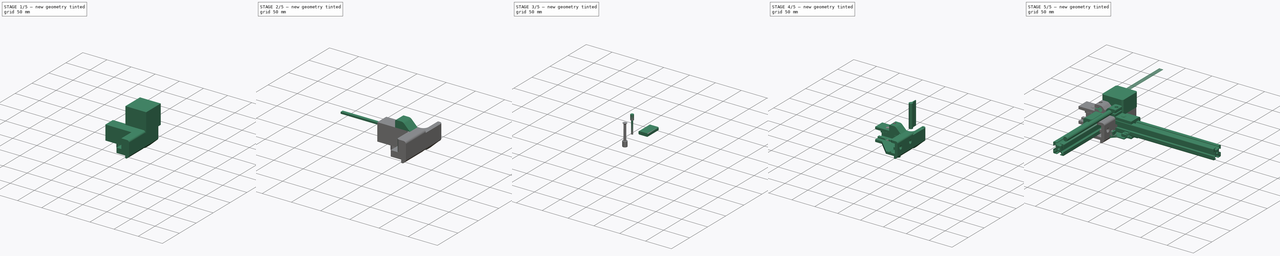
[diagram: build sequence overview — one tinted view per stage of 5, left to right]
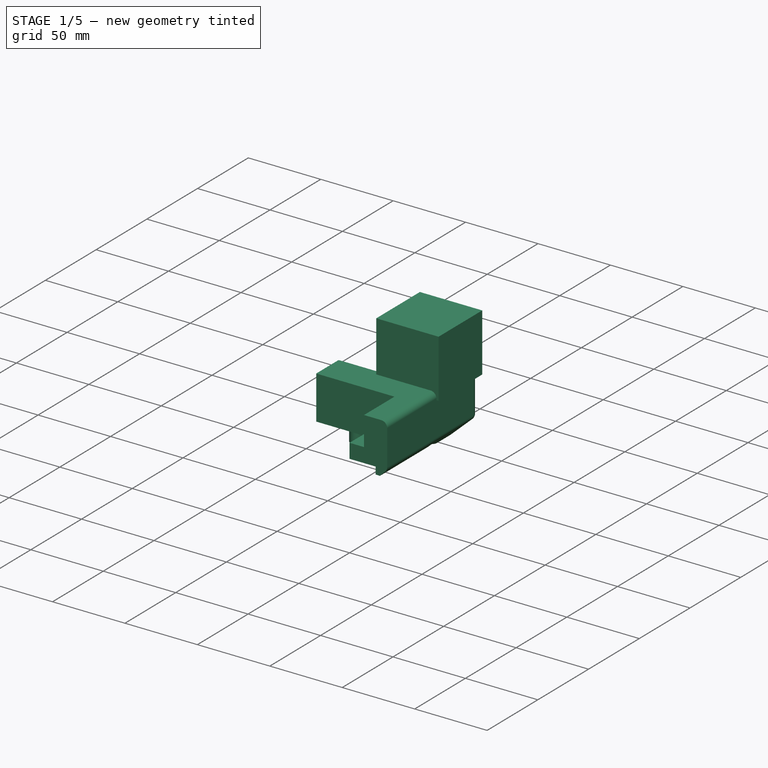
[diagram: stage 1 of 5 — iso view after this stage's code; geometry added in this stage tinted green]
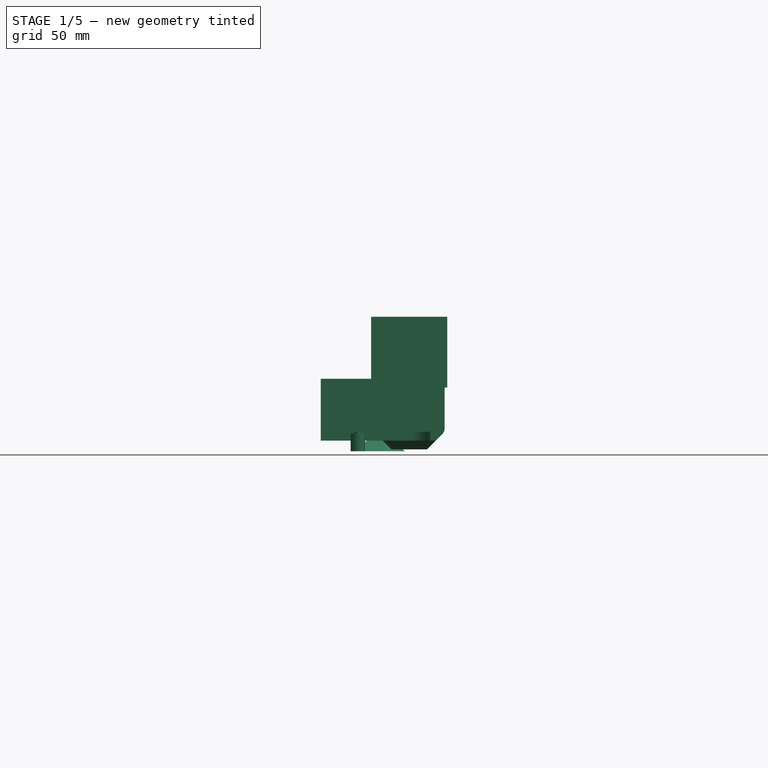
[diagram: stage 1 of 5 — front view after this stage's code; geometry added in this stage tinted green]
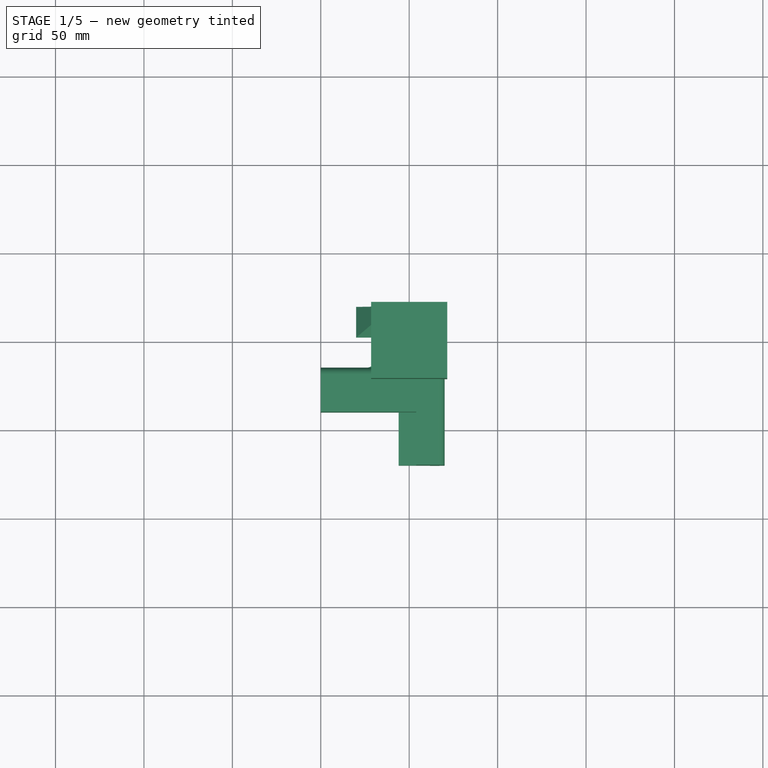
[diagram: stage 1 of 5 — top view after this stage's code; geometry added in this stage tinted green]
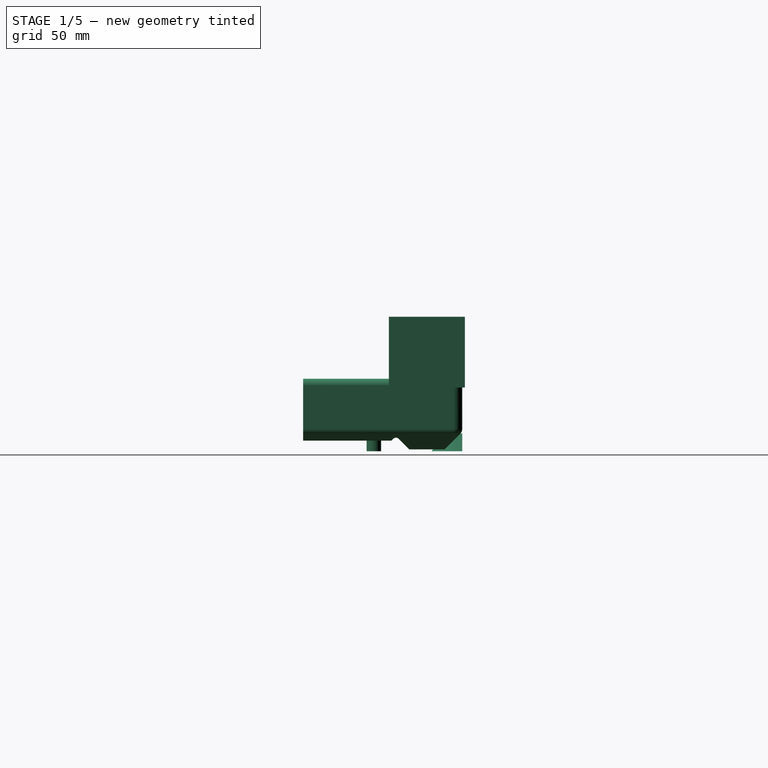
[diagram: stage 1 of 5 — right view after this stage's code; geometry added in this stage tinted green]
FCSTD DOCUMENT  (FreeCAD 0.16RUnknown)
Label: BackCorner
License: All rights reserved
LicenseURL: http://en.wikipedia.org/wiki/All_rights_reserved
objects: Part::Cut×28, Part::FeaturePython×27, Sketcher::SketchObject×22, PartDesign::Pad×16, Part::Mirroring×12, PartDesign::Draft×7, App::DocumentObjectGroup×6, Part::Fillet×6, Part::Box×5, Part::Compound×4, Part::Extrusion×3, Part::MultiCommon×3, Part::MultiFuse×3, Part::Chamfer×3, PartDesign::Pocket×2, Part::Offset×1, Spreadsheet::Sheet×1, PartDesign::Revolution×1, Part::Cylinder×1
note: 163 computed .brp shape members not serialized (recipe doc carries the construction recipe); baked Part::Feature solids carry a one-line shape summary decoded from their .brp

FEATURE [Sketcher::SketchObject] Sketch  label="StringPath"
  Placement = pos=(-106,-90,-10) rot=(0,0,1;0rad)
  sketch-geometry (18):
    g0: ArcOfCircle CenterX=-106 CenterY=90 CenterZ=0 NormalX=0 NormalY=0 NormalZ=1 Radius=5.5 StartAngle=6.27583 EndAngle=9.42478
    g1: ArcOfCircle CenterX=106 CenterY=90 CenterZ=0 NormalX=0 NormalY=0 NormalZ=1 Radius=5.5 StartAngle=8.0041e-08 EndAngle=3.17907
    g2: ArcOfCircle CenterX=105.5 CenterY=-82 CenterZ=0 NormalX=0 NormalY=0 NormalZ=1 Radius=6 StartAngle=3.09595 EndAngle=6.28319
    g3: ArcOfCircle CenterX=95 CenterY=-22 CenterZ=0 NormalX=0 NormalY=0 NormalZ=1 Radius=6 StartAngle=6.25815 EndAngle=7.85398
    g4: ArcOfCircle CenterX=95 CenterY=22 CenterZ=0 NormalX=0 NormalY=0 NormalZ=1 Radius=6 StartAngle=4.71239 EndAngle=6.29051
    g5: ArcOfCircle CenterX=-95 CenterY=22 CenterZ=0 NormalX=0 NormalY=0 NormalZ=1 Radius=6 StartAngle=3.13423 EndAngle=4.71239
    g6: ArcOfCircle CenterX=-95 CenterY=-22 CenterZ=0 NormalX=0 NormalY=0 NormalZ=1 Radius=6 StartAngle=1.5708 EndAngle=3.16664
    g7: ArcOfCircle CenterX=-105.5 CenterY=-82 CenterZ=0 NormalX=0 NormalY=0 NormalZ=1 Radius=6 StartAngle=3.14159 EndAngle=6.30824
    g8: LineSegment StartX=-111.5 StartY=90 StartZ=0 EndX=-111.5 EndY=-82 EndZ=0
    g9: LineSegment StartX=-100.998 StartY=-22.1503 StartZ=0 EndX=-99.5019 EndY=-81.8497 EndZ=0
    g10: LineSegment StartX=-95 StartY=-16 StartZ=0 EndX=95 EndY=-16 EndZ=0
    g11: LineSegment StartX=-100.5 StartY=89.9595 StartZ=0 EndX=-101 EndY=22.0442 EndZ=0
    g12: LineSegment StartX=100.504 StartY=89.7939 StartZ=0 EndX=101 EndY=22.0439 EndZ=0
    g13: LineSegment StartX=111.5 StartY=90 StartZ=0 EndX=111.5 EndY=-82 EndZ=0
    g14: LineSegment StartX=99.5062 StartY=-81.7262 StartZ=0 EndX=100.998 EndY=-22.1502 EndZ=0
    g15: LineSegment StartX=-95 StartY=16 StartZ=0 EndX=-21.9915 EndY=16 EndZ=0
    g16: LineSegment StartX=25.9262 StartY=16 StartZ=0 EndX=95 EndY=16 EndZ=0
    g17: LineSegment [constr] StartX=-59.6823 StartY=0 StartZ=0 EndX=-14.2958 EndY=0 EndZ=0
  constraints (52):
    c: Symmetric(g0,g1,g-2)
    c: Symmetric(g2,g7,g-2)
    c: Equal(g7,g2)
    c: Symmetric(g6,g3,g-2)
    c: Symmetric(g5,g4,g-2)
    c: DistanceY(g1) = 90
    c: DistanceY(g2) = -82
    c: Coincident(g13,g1)
    c: Coincident(g13,g2)
    c: Coincident(g14,g2)
    c: Coincident(g14,g3)
    c: Coincident(g3,g10)
    c: Coincident(g4,g12)
    c: Coincident(g6,g10)
    c: Coincident(g6,g9)
    c: Coincident(g7,g9)
    c: Coincident(g7,g8)
    c: Coincident(g8,g0)
    c: Coincident(g11,g0)
    c: Coincident(g12,g1)
    c: Coincident(g5,g11)
    c: Coincident(g16,g4)
    c: Coincident(g15,g5)
    c: Horizontal(g15)
    c: Horizontal(g16)
    c: PointOnObject(g15,g16)
    c: Tangent(g5,g15)
    c: Tangent(g11,g0)
    c: Tangent(g9,g7)
    c: Tangent(g9,g6)
    c: Tangent(g10,g3)
    c: Tangent(g16,g4)
    c: Equal(g6,g5)
    c: Tangent(g1,g13)
    c: Tangent(g8,g0)
    c: Radius(g4) = 6
    c: Radius(g2) = 6
    c: Tangent(g4,g12)
    c: DistanceX(g5) = -95
    c: Tangent(g10,g6)
    c: Tangent(g14,g3)
    c: Radius(g3) = 6
    c: Equal(g0,g1)
    c: Vertical(g8)
    c: Vertical(g13)
    c: Radius(g0) = 5.5
    c: DistanceX(g0) = -106
    c: Tangent(g5,g11)
    c: DistanceY(g6,g5) = 44
    c: Horizontal(g17)
    c: Symmetric(g5,g6,g17)
    c: PointOnObject(g17,g-1)
FEATURE [Sketcher::SketchObject] Sketch001  label="MotorStand1st"
  sketch-geometry (5):
    g0: LineSegment StartX=-20 StartY=20 StartZ=0 EndX=20 EndY=20 EndZ=0
    g1: LineSegment StartX=20 StartY=20 StartZ=0 EndX=20 EndY=-20 EndZ=0
    g2: LineSegment StartX=20 StartY=-20 StartZ=0 EndX=-20 EndY=-20 EndZ=0
    g3: LineSegment StartX=-20 StartY=-20 StartZ=0 EndX=-20 EndY=20 EndZ=0
    g4: GeomPoint [constr] X=0 Y=0 Z=0
  constraints (12):
    c: Coincident(g0,g1)
    c: Coincident(g1,g2)
    c: Coincident(g2,g3)
    c: Coincident(g3,g0)
    c: Horizontal(g0)
    c: Horizontal(g2)
    c: Vertical(g1)
    c: Vertical(g3)
    c: DistanceX(g0,g0) = 40
    c: Equal(g0,g1)
    c: Symmetric(g1,g0,g4)
    c: Coincident(g4,g-1)
FEATURE [Sketcher::SketchObject] Sketch002  label="MotorStand2nd"
  Placement = pos=(0,0,-25) rot=(0,0,1;0rad)
  sketch-geometry (5):
    g0: LineSegment StartX=-20 StartY=20 StartZ=0 EndX=20 EndY=20 EndZ=0
    g1: LineSegment StartX=20 StartY=20 StartZ=0 EndX=20 EndY=-20 EndZ=0
    g2: LineSegment StartX=20 StartY=-20 StartZ=0 EndX=-20 EndY=-20 EndZ=0
    g3: LineSegment StartX=-20 StartY=-20 StartZ=0 EndX=-20 EndY=20 EndZ=0
    g4: GeomPoint [constr] X=0 Y=0 Z=0
  constraints (12):
    c: Coincident(g0,g1)
    c: Coincident(g1,g2)
    c: Coincident(g2,g3)
    c: Coincident(g3,g0)
    c: Horizontal(g0)
    c: Horizontal(g2)
    c: Vertical(g1)
    c: Vertical(g3)
    c: DistanceX(g0,g0) = 40
    c: Equal(g0,g1)
    c: Symmetric(g1,g0,g4)
    c: Coincident(g4,g-1)
FEATURE [Sketcher::SketchObject] Sketch004  label="Main"
  sketch-geometry (6):
    g0: LineSegment StartX=-50 StartY=-15 StartZ=0 EndX=-50 EndY=-40 EndZ=0
    g1: LineSegment StartX=-50 StartY=-40 StartZ=0 EndX=-6 EndY=-40 EndZ=0
    g2: LineSegment StartX=-6 StartY=-40 StartZ=0 EndX=-6 EndY=-70 EndZ=0
    g3: LineSegment StartX=-6 StartY=-70 StartZ=0 EndX=20 EndY=-70 EndZ=0
    g4: LineSegment StartX=20 StartY=-70 StartZ=0 EndX=20 EndY=-15 EndZ=0
    g5: LineSegment StartX=20 StartY=-15 StartZ=0 EndX=-50 EndY=-15 EndZ=0
  constraints (18):
    c: Coincident(g0,g1)
    c: Coincident(g1,g2)
    c: Coincident(g2,g3)
    c: Coincident(g3,g4)
    c: Coincident(g4,g5)
    c: Coincident(g5,g0)
    c: Vertical(g2)
    c: Vertical(g4)
    c: Vertical(g0)
    c: Horizontal(g1)
    c: Horizontal(g5)
    c: Horizontal(g3)
    c: DistanceY(g0,g0) = 25
    c: DistanceX(g3,g3) = 26
    c: DistanceX(g1) = -6
    c: DistanceY(g1) = -40
    c: DistanceX(g5,g5) = 70
    c: DistanceY(g4,g4) = 55
FEATURE [PartDesign::Pad] Pad  label="Main001"
  Length = 5
  Length2 = 25
  Sketch = -> Sketch004
  Type = 4
FEATURE [Part::Box] Box  label="NEMACut"
  Height = 40
  Length = 43
  Placement = pos=(-21.5,-21.5,0) rot=(0,0,1;0rad)
  Width = 43
FEATURE [PartDesign::Pad] Pad016  label="LowerFoot"
  Length = 10
  Length2 = 100
  Placement = pos=(0,0,-25) rot=(0,0,1;0rad)
  Reversed = true
  Sketch = -> Sketch002
  Type = 0
FEATURE [PartDesign::Pad] Pad017  label="PulleyBox"
  Length = 25
  Length2 = 100
  Reversed = true
  Sketch = -> Sketch001
  Type = 0
FEATURE [PartDesign::Draft] Draft002  label="DraftedFoot"
  Angle = 45
  Base = -> Pad016 [Face1,Face4,Face2,Face3]
  NeutralPlane = -> Pad016 [Face5]
  Placement = pos=(0,0,-25) rot=(0,0,1;0rad)
FEATURE [Sketcher::SketchObject] Sketch044  label="CoverHold"
  Placement = pos=(0,0,-25) rot=(0,0,1;0rad)
  sketch-geometry (6):
    g0: LineSegment StartX=-50 StartY=-15 StartZ=0 EndX=-50 EndY=-23 EndZ=0
    g1: LineSegment StartX=-50 StartY=-23 StartZ=0 EndX=12 EndY=-23 EndZ=0
    g2: LineSegment StartX=12 StartY=-23 StartZ=0 EndX=12 EndY=-70 EndZ=0
    g3: LineSegment StartX=12 StartY=-70 StartZ=0 EndX=20 EndY=-70 EndZ=0
    g4: LineSegment StartX=20 StartY=-70 StartZ=0 EndX=20 EndY=-15 EndZ=0
    g5: LineSegment StartX=20 StartY=-15 StartZ=0 EndX=-50 EndY=-15 EndZ=0
  constraints (18):
    c: Coincident(g0,g1)
    c: Coincident(g1,g2)
    c: Coincident(g2,g3)
    c: Coincident(g3,g4)
    c: Coincident(g4,g5)
    c: Coincident(g5,g0)
    c: Vertical(g2)
    c: Vertical(g4)
    c: Vertical(g0)
    c: Horizontal(g1)
    c: Horizontal(g5)
    c: Horizontal(g3)
    c: DistanceX(g3,g3) = 8
    c: DistanceX(g5,g5) = 70
    c: Equal(g0,g3)
    c: DistanceY(g4) = -15
    c: DistanceX(g4) = 20
    c: DistanceY(g4,g4) = 55
FEATURE [PartDesign::Pad] Pad018  label="CoverHold001"
  Length = 5
  Length2 = 100
  Placement = pos=(0,0,-25) rot=(0,0,1;0rad)
  Reversed = true
  Sketch = -> Sketch044
  Type = 0
FEATURE [PartDesign::Draft] Draft003  label="CoverHoldDraft"
  Angle = 45
  Base = -> Pad018 [Face5,Face6]
  NeutralPlane = -> Pad018 [Face7]
  Placement = pos=(0,0,-25) rot=(0,0,1;0rad)
  Reversed = true
FEATURE [Part::Fillet] Fillet006  label="CoverFillet"
  Base = -> Draft003
  Edges = 1 edges r=10: [Edge5]
FEATURE [Part::MultiFuse] Fusion  label="MainAngle"
  Shapes = -> [Pad,Fillet006]
FEATURE [Part::MultiFuse] Fusion001  label="NEMABox"
  Shapes = -> [Pad017,Draft002]
FEATURE [Part::Fillet] Fillet  label="MainAngleFillet"
  Base = -> Fusion
  Edges = 2 edges r=4: [Edge5,Edge6]
FEATURE [Part::MultiFuse] Fusion002  label="MainBody"
  Shapes = -> [Fusion001,Fillet]
FEATURE [Part::Fillet] Fillet007  label="MainBodyFillet"
  Base = -> Fusion002
  Edges = 14 edges: [Edge1 r=5,Edge3 r=4,Edge4 r=5,Edge6 r=4,Edge7 r=4,Edge10 r=5,Edge12 r=5,Edge13 r=4,Edge15 r=5,Edge16 r=4,Edge22 r=2,Edge25 r=4,Edge26 r=5,Edge59 r=4]
FEATURE [Sketcher::SketchObject] Sketch027  label="AntiCollitionCut"
  Placement = pos=(0,0,5) rot=(0,0,1;0rad)
  Support = -> Fillet007 [Face27]
  sketch-geometry (4):
    g0: LineSegment StartX=4 StartY=-40 StartZ=0 EndX=-18.9802 EndY=-40 EndZ=0
    g1: LineSegment StartX=-18.9802 StartY=-40 StartZ=0 EndX=-18.9802 EndY=-82.0857 EndZ=0
    g2: LineSegment StartX=-18.9802 StartY=-82.0857 StartZ=0 EndX=4 EndY=-82.0857 EndZ=0
    g3: LineSegment StartX=4 StartY=-82.0857 StartZ=0 EndX=4 EndY=-40 EndZ=0
  constraints (10):
    c: Coincident(g0,g1)
    c: Coincident(g1,g2)
    c: Coincident(g2,g3)
    c: Coincident(g3,g0)
    c: Horizontal(g0)
    c: Horizontal(g2)
    c: Vertical(g1)
    c: Vertical(g3)
    c: DistanceX(g0) = 4
    c: DistanceY(g0) = -40
FEATURE [PartDesign::Pocket] Pocket  label="AntiCollitionCut001"
  Length = 20
  Sketch = -> Sketch027
  Type = 0
FEATURE [Sketcher::SketchObject] Sketch045  label="NEMABoltHead"
  sketch-geometry (5):
    g0: LineSegment StartX=-4.5 StartY=1.51133e-05 StartZ=0 EndX=-4.5 EndY=4.50002 EndZ=0
    g1: LineSegment StartX=-4.5 StartY=4.50002 StartZ=0 EndX=4.5 EndY=4.50002 EndZ=0
    g2: LineSegment StartX=4.5 StartY=4.50002 StartZ=0 EndX=4.5 EndY=-4.5 EndZ=0
    g3: LineSegment StartX=4.5 StartY=-4.5 StartZ=0 EndX=2.00803e-07 EndY=-4.5 EndZ=0
    g4: ArcOfCircle CenterX=0 CenterY=0 CenterZ=0 NormalX=0 NormalY=0 NormalZ=1 Radius=4.5 StartAngle=3.14159 EndAngle=4.71239
  constraints (15):
    c: Coincident(g0,g1)
    c: Coincident(g1,g2)
    c: Coincident(g2,g3)
    c: Coincident(g4,g-1)
    c: Coincident(g4,g0)
    c: Coincident(g4,g3)
    c: Vertical(g2)
    c: Vertical(g0)
    c: Horizontal(g1)
    c: Horizontal(g3)
    c: Tangent(g4,g3)
    c: Tangent(g4,g0)
    c: Radius(g4) = 4.5
    c: DistanceX(g1) = 4.5
    c: DistanceY(g0,g0) = 4.5
FEATURE [PartDesign::Pad] Pad019  label="NEMABoltHead001"
  Length = 10
  Length2 = 100
  Sketch = -> Sketch045
  Type = 0
FEATURE [PartDesign::Draft] Draft004  label="NEMABoltHead002"
  Angle = 40
  Base = -> Pad019 [Face4]
  NeutralPlane = -> Pad019 [Face6]
FEATURE [PartDesign::Draft] Draft005  label="NEMABoltHead003"
  Angle = 45
  Base = -> Draft004 [Face2]
  NeutralPlane = -> Draft004 [Face6]
FEATURE [App::DocumentObjectGroup] Group001  label="NEMABolts"
  Group = -> [Pad005,Draft004,Pad019,Draft005]
FEATURE [Part::FeaturePython] Clone017  label="Clone of NEMABoltHead003"  # Draft clone (typed FeaturePython)
  Objects = -> [Draft005]
  Placement = pos=(-15.5,-15.5,-26) rot=(0.707107,-0.707107,0;3.14159rad)
  Scale = (1,1,1)
FEATURE [Sketcher::SketchObject] Sketch054  label="M4PrintThread"
  expr: Constraints[11] = pars.CilLoose + 2
  sketch-geometry (4):
    g0: LineSegment StartX=-1.48493 StartY=1.48492 StartZ=0 EndX=-0.869848 EndY=2.1 EndZ=0
    g1: LineSegment StartX=-0.869848 StartY=2.1 StartZ=0 EndX=0.869848 EndY=2.1 EndZ=0
    g2: LineSegment StartX=0.869848 StartY=2.1 StartZ=0 EndX=1.48493 EndY=1.48492 EndZ=0
    g3: ArcOfCircle CenterX=0 CenterY=0 CenterZ=0 NormalX=0 NormalY=0 NormalZ=1 Radius=2.1 StartAngle=2.3562 EndAngle=7.06858
  constraints (12):
    c: Coincident(g0,g1)
    c: Coincident(g1,g2)
    c: Coincident(g3,g-1)
    c: Coincident(g0,g3)
    c: Coincident(g2,g3)
    c: Tangent(g1,g3)
    c: Tangent(g3,g0)
    c: Tangent(g2,g3)
    c: Perpendicular(g2,g0)
    c: Angle(g0,g1) = 2.35619
    c: Horizontal(g1)
    c: Radius(g3) = 2.1
FEATURE [PartDesign::Pad] Pad023  label="M4PrintThread001"
  Length = 20
  Length2 = 100
  Reversed = true
  Sketch = -> Sketch054
  Type = 0
FEATURE [Sketcher::SketchObject] Sketch055  label="M4PrintHead"
  Support = -> Pad023 [Face5]
  expr: Constraints[11] = pars.CilLoose + 4
  sketch-geometry (4):
    g0: LineSegment StartX=-2.89912 StartY=2.89915 StartZ=0 EndX=-1.69828 EndY=4.1 EndZ=0
    g1: LineSegment StartX=-1.69828 StartY=4.1 StartZ=0 EndX=1.69828 EndY=4.1 EndZ=0
    g2: LineSegment StartX=1.69828 StartY=4.1 StartZ=0 EndX=2.89913 EndY=2.89914 EndZ=0
    g3: ArcOfCircle CenterX=0 CenterY=0 CenterZ=0 NormalX=0 NormalY=0 NormalZ=1 Radius=4.1 StartAngle=2.35619 EndAngle=7.06859
  constraints (12):
    c: Coincident(g0,g1)
    c: Coincident(g1,g2)
    c: Coincident(g3,g-1)
    c: Coincident(g0,g3)
    c: Coincident(g2,g3)
    c: Tangent(g1,g3)
    c: Tangent(g3,g0)
    c: Tangent(g2,g3)
    c: Perpendicular(g2,g0)
    c: Angle(g0,g1) = 2.35619
    c: Horizontal(g1)
    c: Radius(g3) = 4.1
FEATURE [PartDesign::Pad] Pad024  label="M4PrintHead001"
  Length = 10
  Length2 = 100
  Sketch = -> Sketch055
  Type = 0
FEATURE [Sketcher::SketchObject] Sketch051  label="DIN7991M4Bolt"
  expr: Constraints[12] = pars.CilLoose + 2
  sketch-geometry (5):
    g0: LineSegment StartX=0 StartY=0 StartZ=0 EndX=4 EndY=0 EndZ=0
    g1: LineSegment StartX=4 StartY=0 StartZ=0 EndX=2.1 EndY=-1.9 EndZ=0
    g2: LineSegment StartX=2.1 StartY=-1.9 StartZ=0 EndX=2.1 EndY=-20 EndZ=0
    g3: LineSegment StartX=2.1 StartY=-20 StartZ=0 EndX=0 EndY=-20 EndZ=0
    g4: LineSegment StartX=0 StartY=-20 StartZ=0 EndX=0 EndY=0 EndZ=0
  constraints (14):
    c: Coincident(g0,g1)
    c: Coincident(g1,g2)
    c: Coincident(g2,g3)
    c: Coincident(g3,g4)
    c: Coincident(g4,g0)
    c: Coincident(g0,g-1)
    c: Horizontal(g0)
    c: Horizontal(g3)
    c: Vertical(g4)
    c: Vertical(g2)
    c: Angle(g0,g1) = 0.785398
    c: DistanceY(g4,g4) = 20
    c: DistanceX(g3,g3) = 2.1
    c: DistanceX(g0,g0) = 4
FEATURE [PartDesign::Revolution] Revolution001  label="DIN7991M4Bolt001"
  Angle = 360
  Axis = (0,1,0)
  Base = (0,0,0)
  ReferenceAxis = -> Sketch051 [V_Axis]
  Reversed = true
  Sketch = -> Sketch051
FEATURE [Part::Mirroring] Part__Mirroring015  label="Clone of NEMABoltHead003 (Mirror #11)"
  Base = (0,0,0)
  Normal = (0,1,0)
  Source = -> Clone017
FEATURE [Part::FeaturePython] Clone033  label="Clone of M4PrintHead004"  # Draft clone (typed FeaturePython)
  Objects = -> [Pad024]
  Placement = pos=(-29,-30,-26) rot=(-0.707107,0.707107,0;3.14159rad)
  Scale = (1,1,1)
FEATURE [Part::FeaturePython] Clone034  label="Clone of DIN7991M4Bolt003"  # Draft clone (typed FeaturePython)
  Objects = -> [Revolution001]
  Placement = pos=(-29,-30,5) rot=(1,0,0;1.5708rad)
  Scale = (1,1,1)
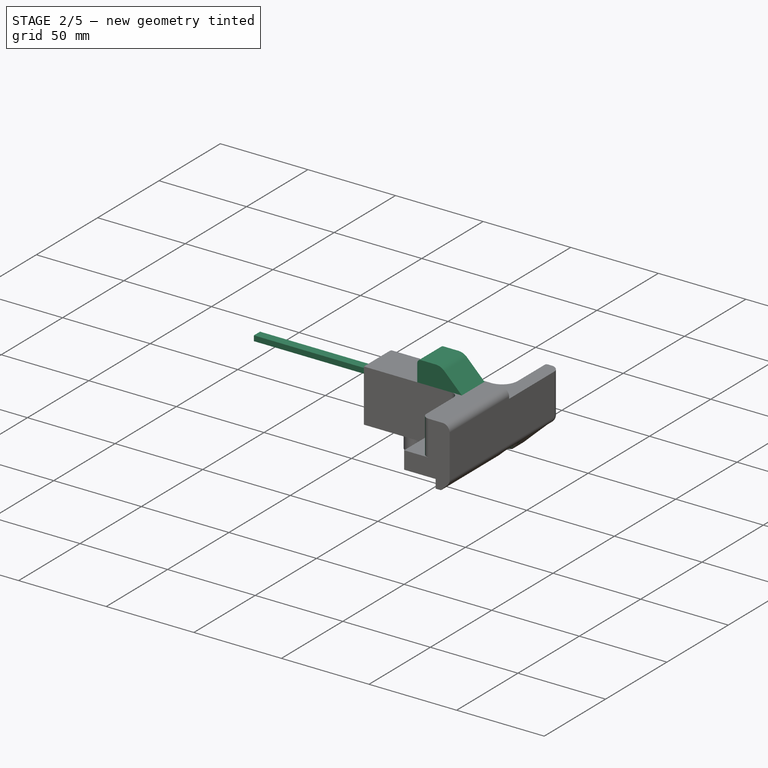
[diagram: stage 2 of 5 — iso view after this stage's code; geometry added in this stage tinted green]
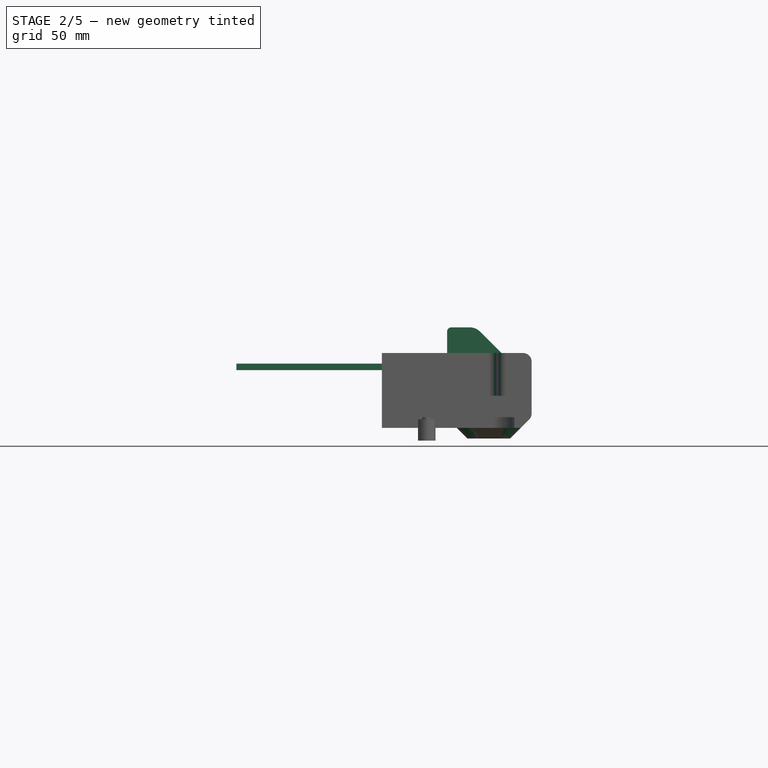
[diagram: stage 2 of 5 — front view after this stage's code; geometry added in this stage tinted green]
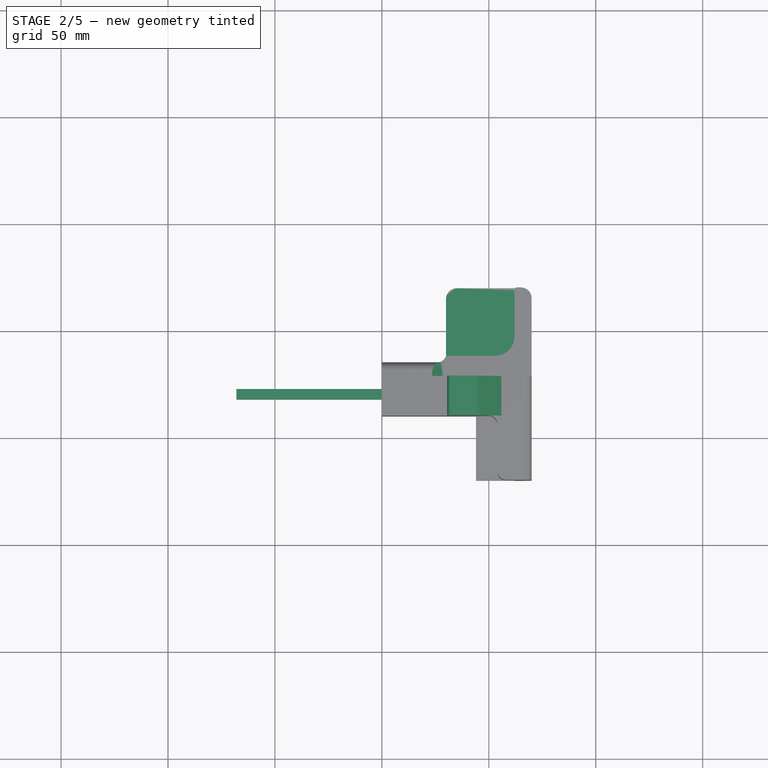
[diagram: stage 2 of 5 — top view after this stage's code; geometry added in this stage tinted green]
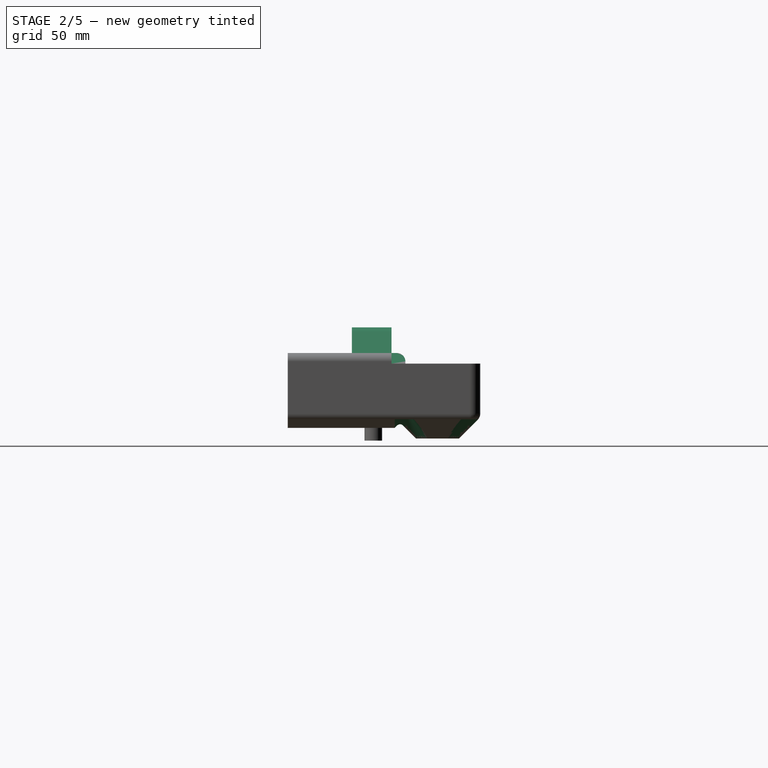
[diagram: stage 2 of 5 — right view after this stage's code; geometry added in this stage tinted green]
FEATURE [Part::Box] Box002  label="20GuideHalf001"
  Height = 100
  Length = 3
  Placement = pos=(0,2.5,-2.825) rot=(1,0,0;3.14159rad)
  Width = 5
FEATURE [Sketcher::SketchObject] Sketch007  label="NEMAbolt"
  sketch-geometry (4):
    g0: ArcOfCircle CenterX=0 CenterY=0 CenterZ=0 NormalX=0 NormalY=0 NormalZ=1 Radius=1.5 StartAngle=3.927 EndAngle=8.63938
    g1: LineSegment StartX=-1.06066 StartY=1.06067 StartZ=0 EndX=-1.5 EndY=0.62132 EndZ=0
    g2: LineSegment StartX=-1.5 StartY=0.62132 StartZ=0 EndX=-1.5 EndY=-0.62132 EndZ=0
    g3: LineSegment StartX=-1.5 StartY=-0.62132 StartZ=0 EndX=-1.06065 EndY=-1.06067 EndZ=0
  constraints (12):
    c: Radius(g0) = 1.5
    c: Coincident(g0,g-1)
    c: Coincident(g1,g2)
    c: Coincident(g2,g3)
    c: Coincident(g3,g0)
    c: Coincident(g1,g0)
    c: Tangent(g3,g0)
    c: Tangent(g1,g0)
    c: Tangent(g2,g0)
    c: Vertical(g2)
    c: Perpendicular(g1,g3)
    c: Angle(g3,g2) = 2.35619
FEATURE [Part::Box] Box001  label="20GuideHalf"
  Height = 100
  Length = 3
  Placement = pos=(0,-2.5,2.825) rot=(0,0,1;0rad)
  Width = 5
FEATURE [Part::Compound] Compound001  label="20Guide"
  Links = -> [Box001,Box002]
FEATURE [Part::Box] Box004  label="Vert20Prof"
  Height = 20
  Length = 20
  Placement = pos=(-10,-10,-10) rot=(0,0,1;0rad)
  Width = 100
FEATURE [Part::FeaturePython] Clone007  label="Clone of Vert20Prof"  # Draft clone (typed FeaturePython)
  Objects = -> [Box004]
  Placement = pos=(-6,-40,-20) rot=(0,0,1;1.5708rad)
  Scale = (1,1,1)
FEATURE [Part::FeaturePython] Clone008  label="Clone of 20Guide001"  # Draft clone (typed FeaturePython)
  Objects = -> [Compound001]
  Placement = pos=(-29,-30,0) rot=(0,1,0;1.5708rad)
  Scale = (1,1,1)
FEATURE [Part::MultiCommon] Common001  label="GuideCut"
  Shapes = -> [Clone007,Clone008]
FEATURE [Part::Fillet] Fillet002  label="AntiCollitionFillet"
  Base = -> Pocket
  Edges = 2 edges r=4: [Edge61,Edge101]
FEATURE [Part::Cut] Cut  label="NEMACut001"
  Base = -> Fillet002
  Tool = -> Box
FEATURE [PartDesign::Draft] Draft  label="PrintableDraft"
  Angle = 45
  Base = -> Cut [Face16]
  NeutralPlane = -> Cut [Face21]
FEATURE [Sketcher::SketchObject] Sketch029  label="PulleySpace"
  Support = -> Draft [Face22]
  sketch-geometry (5):
    g0: LineSegment StartX=3 StartY=-12 StartZ=0 EndX=-39.3173 EndY=-12 EndZ=0
    g1: LineSegment StartX=-39.3173 StartY=-12 StartZ=0 EndX=-39.3173 EndY=25.181 EndZ=0
    g2: LineSegment StartX=-39.3173 StartY=25.181 StartZ=0 EndX=12 EndY=25.181 EndZ=0
    g3: LineSegment StartX=12 StartY=25.181 StartZ=0 EndX=12 EndY=-3 EndZ=0
    g4: ArcOfCircle CenterX=3 CenterY=-3 CenterZ=0 NormalX=0 NormalY=0 NormalZ=1 Radius=9 StartAngle=4.71239 EndAngle=6.28319
  constraints (12):
    c: Coincident(g0,g1)
    c: Coincident(g1,g2)
    c: Coincident(g2,g3)
    c: Horizontal(g0)
    c: Horizontal(g2)
    c: Vertical(g1)
    c: Vertical(g3)
    c: DistanceX(g2) = 12
    c: DistanceY(g0) = -12
    c: Tangent(g3,g4) = 1.5708
    c: Tangent(g0,g4) = 1.5708
    c: Radius(g4) = 9
FEATURE [PartDesign::Pocket] Pocket001  label="PulleySpace001"
  Length = 22
  Sketch = -> Sketch029
  Type = 0
FEATURE [Part::Fillet] Fillet003  label="AntiCreaseFillet"
  Base = -> Pocket001
  Edges = 2 edges r=1: [Edge108,Edge110]
FEATURE [Part::Mirroring] Part__Mirroring008  label="Clone of NEMABoltHead (Mirror #5)"
  Base = (0,0,0)
  Normal = (1,0,0)
  Source = -> Clone017
FEATURE [Part::Cut] Cut001
  Base = -> Fillet003
  Tool = -> Clone017
FEATURE [Part::Cut] Cut002
  Base = -> Cut001
  Tool = -> Part__Mirroring008
FEATURE [Part::Mirroring] Part__Mirroring013  label="Clone of NEMABoltHead (Mirror #9)"
  Base = (0,0,0)
  Normal = (0,1,0)
  Source = -> Part__Mirroring008
FEATURE [Part::FeaturePython] Clone021  label="Clone of 20Guide002"  # Draft clone (typed FeaturePython)
  Objects = -> [Compound001]
  Placement = pos=(-29,-30,0) rot=(0,1,0;1.5708rad)
  Scale = (1,1,1)
FEATURE [Part::FeaturePython] Clone022  label="Clone of Vert20Prof001"  # Draft clone (typed FeaturePython)
  Objects = -> [Box004]
  Placement = pos=(-18,-40,-20) rot=(0,0,1;1.5708rad)
  Scale = (1,1,1)
FEATURE [Part::MultiCommon] Common002  label="UpperGuideNut"
  Shapes = -> [Clone022,Clone021]
FEATURE [PartDesign::Draft] Draft006  label="UpperGuideNutDraft"
  Angle = 45
  Base = -> Common002 [Face1,Face10]
  NeutralPlane = -> Common002 [Face7]
  Reversed = true
FEATURE [App::DocumentObjectGroup] Group002  label="Guides_src"
  Group = -> [Compound001,Box001,Box002,Compound003,Box004,Box005,Common001,Common002,Draft006,Draft001]
FEATURE [Part::FeaturePython] Clone025  label="Clone of UpperGuideNutDraft"  # Draft clone (typed FeaturePython)
  Objects = -> [Draft006]
  Scale = (1,1,1)
FEATURE [Part::Cut] Cut018002004004006  label="Cut"
  Base = -> Cut002
  Tool = -> Part__Mirroring015
FEATURE [Part::Cut] Cut003  label="NEMABoltHeads"
  Base = -> Cut018002004004006
  Tool = -> Part__Mirroring013
FEATURE [Sketcher::SketchObject] Sketch030  label="SmRodHolder"
  Placement = pos=(0,-40,0) rot=(1,0,0;1.5708rad)
  Support = -> Cut003 [Face51]
  sketch-geometry (6):
    g0: ArcOfCircle CenterX=-9 CenterY=10 CenterZ=0 NormalX=0 NormalY=0 NormalZ=1 Radius=7 StartAngle=0.785394 EndAngle=1.57079
    g1: LineSegment StartX=-8.99997 StartY=17 StartZ=0 EndX=-17.5 EndY=17 EndZ=0
    g2: LineSegment StartX=-19.5 StartY=4 StartZ=0 EndX=6.89949 EndY=4 EndZ=0
    g3: LineSegment StartX=6.89949 StartY=4 StartZ=0 EndX=-4.05023 EndY=14.9497 EndZ=0
    g4: LineSegment StartX=-19.5 StartY=15 StartZ=0 EndX=-19.5 EndY=4 EndZ=0
    g5: ArcOfCircle CenterX=-17.5 CenterY=15 CenterZ=0 NormalX=0 NormalY=0 NormalZ=1 Radius=2 StartAngle=1.5708 EndAngle=3.14159
  constraints (18):
    c: Coincident(g2,g3)
    c: Coincident(g3,g0)
    c: Coincident(g1,g0)
    c: Tangent(g0,g1)
    c: Tangent(g0,g3)
    c: DistanceY(g0) = 10
    c: DistanceX(g0) = -9
    c: Radius(g0) = 7
    c: Horizontal(g2)
    c: Angle(g3,g2) = 0.785398
    c: DistanceY(g2) = 4
    c: Horizontal(g1)
    c: Vertical(g4)
    c: Coincident(g4,g2)
    c: Tangent(g4,g5) = -1.5708
    c: Tangent(g1,g5) = -1.5708
    c: Radius(g5) = 2
    c: DistanceX(g2,g0) = 10.5
FEATURE [PartDesign::Pad] Pad007  label="SmRodHolder001"
  Length = 18.5
  Length2 = 100
  Reversed = true
  Sketch = -> Sketch030
  Type = 0
FEATURE [Part::FeaturePython] refine  label="refine_SmRodHolder001"  # WARN: FeaturePython — macro-defined, semantics opaque (R4)
  Base = -> Pad007
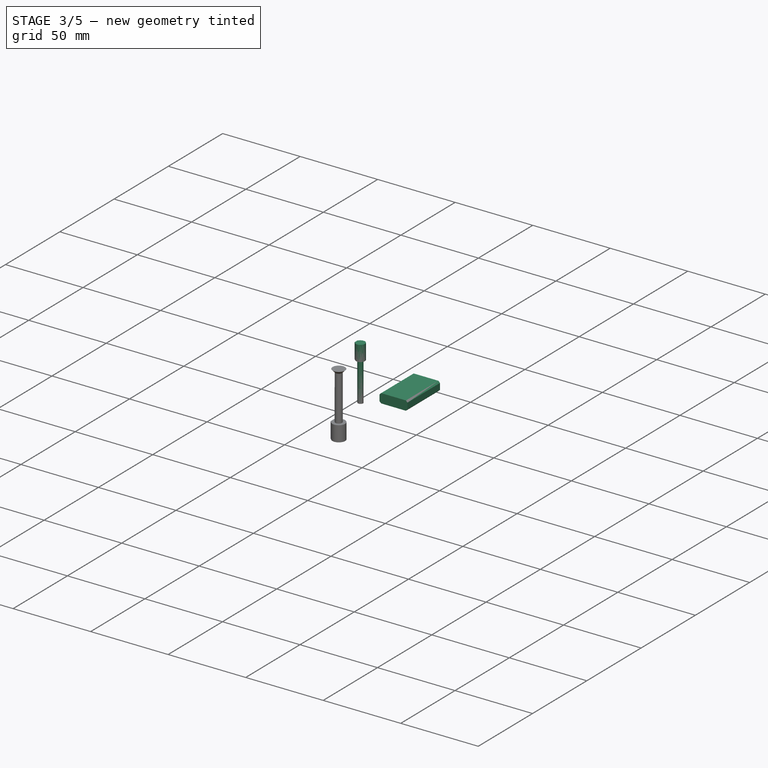
[diagram: stage 3 of 5 — iso view after this stage's code; geometry added in this stage tinted green]
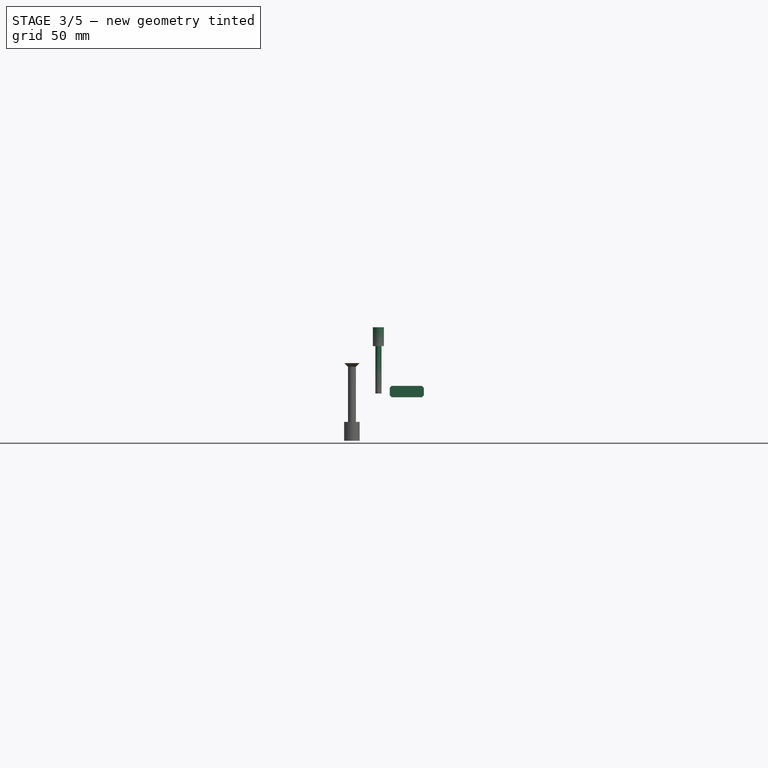
[diagram: stage 3 of 5 — front view after this stage's code; geometry added in this stage tinted green]
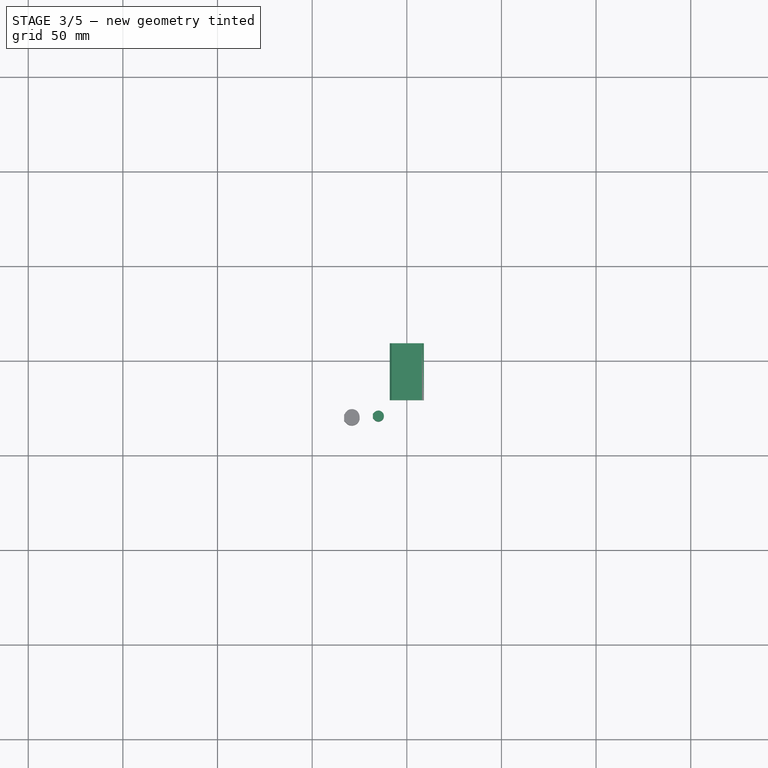
[diagram: stage 3 of 5 — top view after this stage's code; geometry added in this stage tinted green]
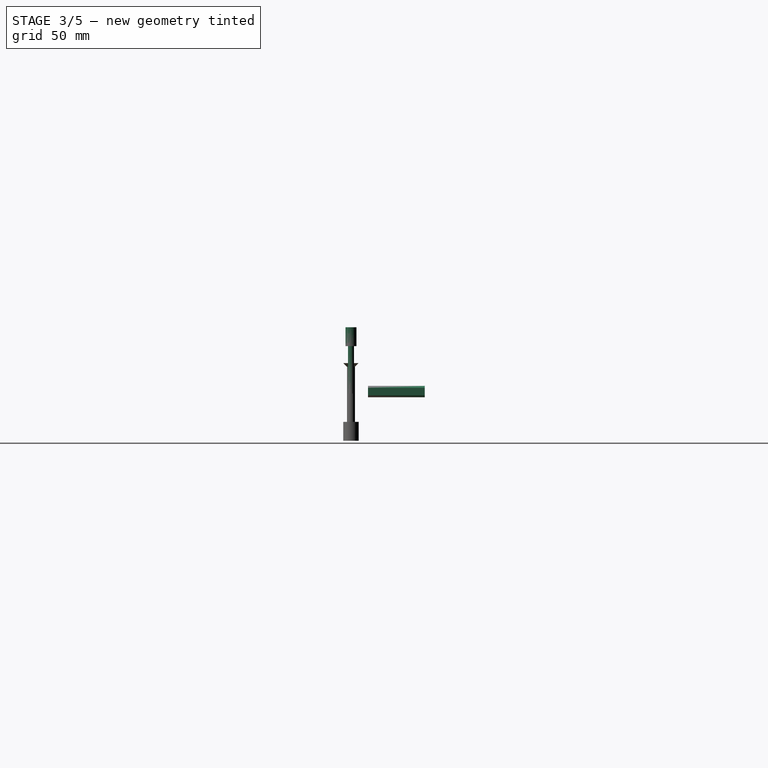
[diagram: stage 3 of 5 — right view after this stage's code; geometry added in this stage tinted green]
FEATURE [Sketcher::SketchObject] Sketch026  label="20AngledGuideSketch"
  sketch-geometry (3):
    g0: LineSegment StartX=0 StartY=2.5 StartZ=0 EndX=-2.5 EndY=0 EndZ=0
    g1: LineSegment StartX=-2.5 StartY=0 StartZ=0 EndX=2.5 EndY=0 EndZ=0
    g2: LineSegment StartX=2.5 StartY=0 StartZ=0 EndX=0 EndY=2.5 EndZ=0
  constraints (9):
    c: Coincident(g0,g1)
    c: Coincident(g1,g2)
    c: Coincident(g2,g0)
    c: Horizontal(g1)
    c: PointOnObject(g0,g-1)
    c: PointOnObject(g0,g-2)
    c: Symmetric(g1,g0,g-2)
    c: Perpendicular(g2,g0)
    c: DistanceX(g1) = 5
FEATURE [Part::Extrusion] Extrude005  label="20AngledGuideHalf001"
  Base = -> Sketch026
  Dir = (0,0,-100)
  Placement = pos=(0,0,-2.825) rot=(0,0,1;0rad)
  Solid = true
FEATURE [Part::Extrusion] Extrude004  label="20AngledGuideHalf"
  Base = -> Sketch026
  Dir = (0,0,100)
  Placement = pos=(0,0,2.825) rot=(0,0,1;0rad)
  Solid = true
FEATURE [Part::Compound] Compound003  label="20AngledGuide"
  Links = -> [Extrude004,Extrude005]
FEATURE [Sketcher::SketchObject] Sketch028  label="Profiles"
  expr: Constraints[12] = 20 + pars.ProfTol
  sketch-geometry (6):
    g0: LineSegment StartX=-56.4275 StartY=-20 StartZ=0 EndX=-56.4275 EndY=-40 EndZ=0
    g1: LineSegment StartX=-56.4275 StartY=-40 StartZ=0 EndX=-6 EndY=-40 EndZ=0
    g2: LineSegment StartX=-6 StartY=-40 StartZ=0 EndX=-6 EndY=-81.0849 EndZ=0
    g3: LineSegment StartX=-6 StartY=-81.0849 StartZ=0 EndX=14 EndY=-81.0849 EndZ=0
    g4: LineSegment StartX=14 StartY=-81.0849 StartZ=0 EndX=14 EndY=-20 EndZ=0
    g5: LineSegment StartX=14 StartY=-20 StartZ=0 EndX=-56.4275 EndY=-20 EndZ=0
  constraints (16):
    c: Coincident(g0,g1)
    c: Coincident(g1,g2)
    c: Coincident(g2,g3)
    c: Coincident(g3,g4)
    c: Coincident(g4,g5)
    c: Coincident(g5,g0)
    c: Vertical(g0)
    c: Vertical(g2)
    c: Vertical(g4)
    c: Horizontal(g5)
    c: Horizontal(g1)
    c: Horizontal(g3)
    c: DistanceY(g0,g0) = 20
    c: DistanceY(g1) = -40
    c: DistanceX(g1) = -6
    c: Equal(g0,g3)
FEATURE [PartDesign::Pad] Pad006  label="Profiles001"
  Length = 20
  Length2 = 100
  Reversed = true
  Sketch = -> Sketch028
  Type = 0
  expr: Length = pars.ProfTol + 20
FEATURE [Part::FeaturePython] Clone005  label="Clone of 20Guide"  # Draft clone (typed FeaturePython)
  Objects = -> [Compound001]
  Placement = pos=(14,-30,-10) rot=(0,0.707107,0.707107;3.14159rad)
  Scale = (1,1,1)
FEATURE [Part::FeaturePython] Clone006  label="Clone of Clone of 20Guide"  # Draft clone (typed FeaturePython)
  Objects = -> [Clone005]
  Placement = pos=(14,-60,-10) rot=(0,0.707107,0.707107;3.14159rad)
  Scale = (1,1,1)
FEATURE [Part::MultiCommon] Common  label="SideGuide"
  Shapes = -> [Clone005,Clone006]
FEATURE [PartDesign::Draft] Draft001
  Angle = 45
  Base = -> Common001 [Face1,Face10]
  NeutralPlane = -> Common001 [Face2]
  Reversed = true
FEATURE [Part::Mirroring] Part__Mirroring010  label="Draft001 (Mirror #7)"
  Base = (0,0,-10)
  Normal = (0,0,1)
  Source = -> Draft001
FEATURE [Part::FeaturePython] Clone009  label="Clone of 20AngledGuide"  # Draft clone (typed FeaturePython)
  Objects = -> [Compound003]
  Placement = pos=(4,-45,-20) rot=(1,0,0;1.5708rad)
  Scale = (1,1,1)
FEATURE [Part::Cut] Cut004
  Base = -> Pad006
  Tool = -> Common
FEATURE [Part::Cut] Cut005
  Base = -> Cut004
  Tool = -> Clone009
FEATURE [Part::FeaturePython] Clone011  label="Clone of Draft001"  # Draft clone (typed FeaturePython)
  Objects = -> [Draft001]
  Placement = pos=(-11,-20,-40) rot=(-1,0,0;1.5708rad)
  Scale = (1,1,1)
FEATURE [Part::Cut] Cut006
  Base = -> Cut005
  Tool = -> Clone025
FEATURE [Part::Cut] Cut007
  Base = -> Cut006
  Tool = -> Part__Mirroring010
FEATURE [Part::Cut] Cut008  label="GuidesCut"
  Base = -> Cut007
  Tool = -> Clone011
FEATURE [Spreadsheet::Sheet] Spreadsheet001  label="pars"
  cells = A1=Bolts and Nuts; B1=Value; D1=Components; E1=Value; A2=Thread Tight Tolerance (Radius, ratio); B2(ThrTighRatio)=0.96; D2=Tight Cilinder Tolerances (Radius, mm); E2(CilTight)=0.1; A3=Thread Tight Tolerance (Radius, mm); B3(ThrTightmm)=0.1; D3=Loose Cilinder Tolerances (Radius, mm); E3(CilLoose)=0.1; A5=Nut Slot Width Clearance (mm); B5(NutWidthClearmm)=0.1; A6=Nut Slot Thickess Clearance (mm); B6(NutThickClearmm)=0.1; A13=Particular parameters; B13=Value; A14=Smooth Rod Tolerance; B14(SmRodTol)=-0.05; A15=Profile Tolerance; B15(ProfTol)=0
FEATURE [Sketcher::SketchObject] Sketch052  label="M3PrintThread"
  expr: Constraints[11] = pars.CilLoose + 1.5
  sketch-geometry (4):
    g0: LineSegment StartX=-1.13136 StartY=1.13138 StartZ=0 EndX=-0.662742 EndY=1.6 EndZ=0
    g1: LineSegment StartX=-0.662742 StartY=1.6 StartZ=0 EndX=0.662742 EndY=1.6 EndZ=0
    g2: LineSegment StartX=0.662742 StartY=1.6 StartZ=0 EndX=1.13137 EndY=1.13137 EndZ=0
    g3: ArcOfCircle CenterX=0 CenterY=0 CenterZ=0 NormalX=0 NormalY=0 NormalZ=1 Radius=1.6 StartAngle=2.35619 EndAngle=7.06858
  constraints (12):
    c: Coincident(g0,g1)
    c: Coincident(g1,g2)
    c: Coincident(g3,g-1)
    c: Coincident(g0,g3)
    c: Coincident(g2,g3)
    c: Tangent(g1,g3)
    c: Tangent(g3,g0)
    c: Tangent(g2,g3)
    c: Perpendicular(g2,g0)
    c: Angle(g0,g1) = 2.35619
    c: Horizontal(g1)
    c: Radius(g3) = 1.6
FEATURE [PartDesign::Pad] Pad022  label="M3PrintThread001"
  Length = 25
  Length2 = 100
  Reversed = true
  Sketch = -> Sketch052
  Type = 0
FEATURE [Sketcher::SketchObject] Sketch053  label="M3PrintHead"
  Support = -> Pad022 [Face5]
  expr: Constraints[11] = -pars.CilTight + 3
  sketch-geometry (4):
    g0: LineSegment StartX=-2.0506 StartY=2.05062 StartZ=0 EndX=-1.20122 EndY=2.9 EndZ=0
    g1: LineSegment StartX=-1.20122 StartY=2.9 StartZ=0 EndX=1.20122 EndY=2.9 EndZ=0
    g2: LineSegment StartX=1.20122 StartY=2.9 StartZ=0 EndX=2.0506 EndY=2.05062 EndZ=0
    g3: ArcOfCircle CenterX=0 CenterY=0 CenterZ=0 NormalX=0 NormalY=0 NormalZ=1 Radius=2.9 StartAngle=2.35619 EndAngle=7.06859
  constraints (12):
    c: Coincident(g0,g1)
    c: Coincident(g1,g2)
    c: Coincident(g3,g-1)
    c: Coincident(g0,g3)
    c: Coincident(g2,g3)
    c: Tangent(g1,g3)
    c: Tangent(g3,g0)
    c: Tangent(g2,g3)
    c: Perpendicular(g2,g0)
    c: Angle(g0,g1) = 2.35619
    c: Horizontal(g1)
    c: Radius(g3) = 2.9
FEATURE [PartDesign::Pad] Pad021  label="M3PrintHead001"
  Length = 10
  Length2 = 100
  Sketch = -> Sketch053
  Type = 0
FEATURE [App::DocumentObjectGroup] Grupo  label="Bolt_src"
  Group = -> [Group001,Pad020,Pad011,Pad022,Pad024,Pad021,Revolution001,Pad023]
FEATURE [Part::FeaturePython] Clone026  label="Clone of M3PrintHead001"  # Draft clone (typed FeaturePython)
  Objects = -> [Pad021]
  Placement = pos=(-15,-30,14) rot=(0,0,1;1.5708rad)
  Scale = (1,1,1)
FEATURE [Part::Cut] Cut009  label="InteriorCut"
  Base = -> refine
  Tool = -> Cut008
FEATURE [Part::Fillet] Fillet005  label="AntiCreaseFillet001"
  Base = -> Cut009
  Edges = 1 edges r=1: [Edge36]
FEATURE [Part::Chamfer] Chamfer003006  label="ReinforceFillet"
  Base = -> Fillet005
  Edges = 1 edges r=29.5: [Edge232]
FEATURE [Sketcher::SketchObject] Sketch041  label="StringWindow"
  Placement = pos=(0,-12,0) rot=(0,0.707107,0.707107;3.14159rad)
  Support = -> Chamfer003006 [Face97]
  sketch-geometry (5):
    g0: LineSegment StartX=9 StartY=-7 StartZ=0 EndX=-9 EndY=-7 EndZ=0
    g1: LineSegment StartX=-9 StartY=-7 StartZ=0 EndX=-9 EndY=-13 EndZ=0
    g2: LineSegment StartX=-9 StartY=-13 StartZ=0 EndX=9 EndY=-13 EndZ=0
    g3: LineSegment StartX=9 StartY=-13 StartZ=0 EndX=9 EndY=-7 EndZ=0
    g4: GeomPoint [constr] X=0 Y=-10 Z=0
  constraints (13):
    c: Coincident(g0,g1)
    c: Coincident(g1,g2)
    c: Coincident(g2,g3)
    c: Coincident(g3,g0)
    c: Horizontal(g0)
    c: Horizontal(g2)
    c: Vertical(g1)
    c: Vertical(g3)
    c: Symmetric(g2,g0,g4)
    c: DistanceY(g4) = -10
    c: PointOnObject(g4,g-2)
    c: DistanceY(g3,g3) = 6
    c: DistanceX(g2,g2) = 18
FEATURE [Part::Extrusion] Extrude_Sketch041  label="StringWindow_Extrude"
  Base = -> Sketch041
  Dir = (0,-30,0)
  Placement = pos=(0,21,0) rot=(0,0,1;0rad)
  Solid = true
FEATURE [Part::Chamfer] Chamfer  label="StringWindow001"
  Base = -> Extrude_Sketch041
  Edges = 4 edges r=1: [Edge1,Edge2,Edge5,Edge8]
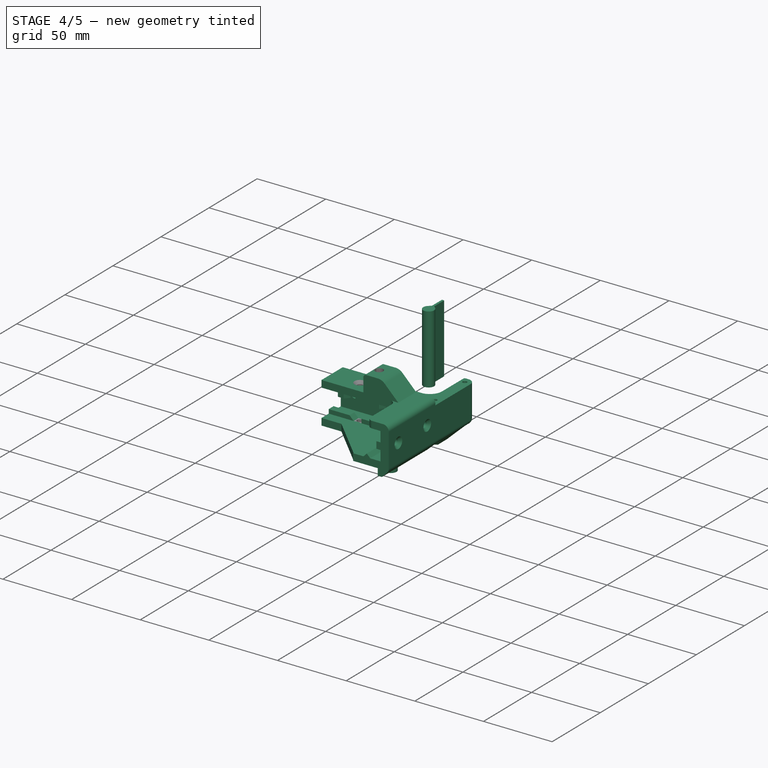
[diagram: stage 4 of 5 — iso view after this stage's code; geometry added in this stage tinted green]
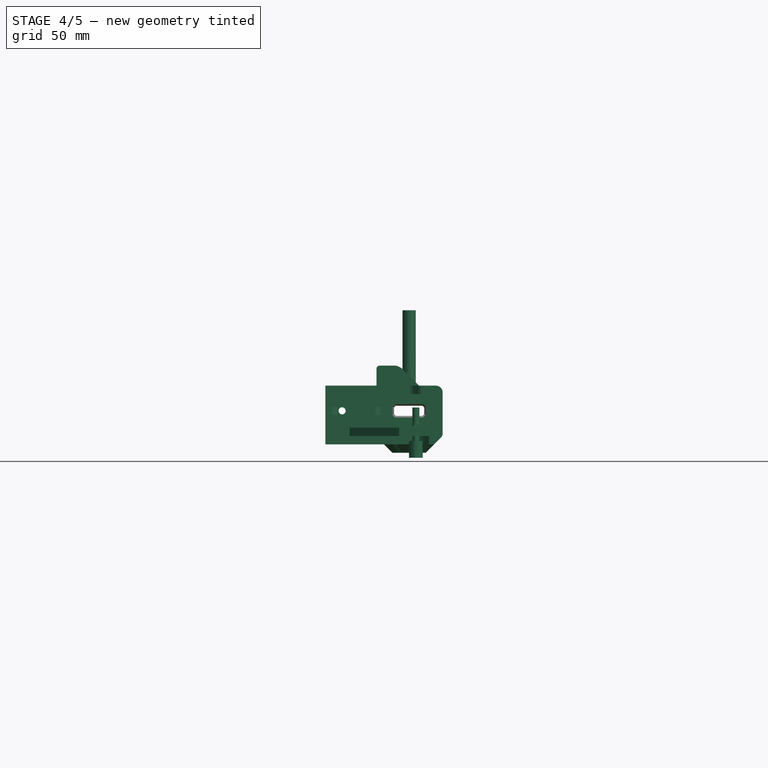
[diagram: stage 4 of 5 — front view after this stage's code; geometry added in this stage tinted green]
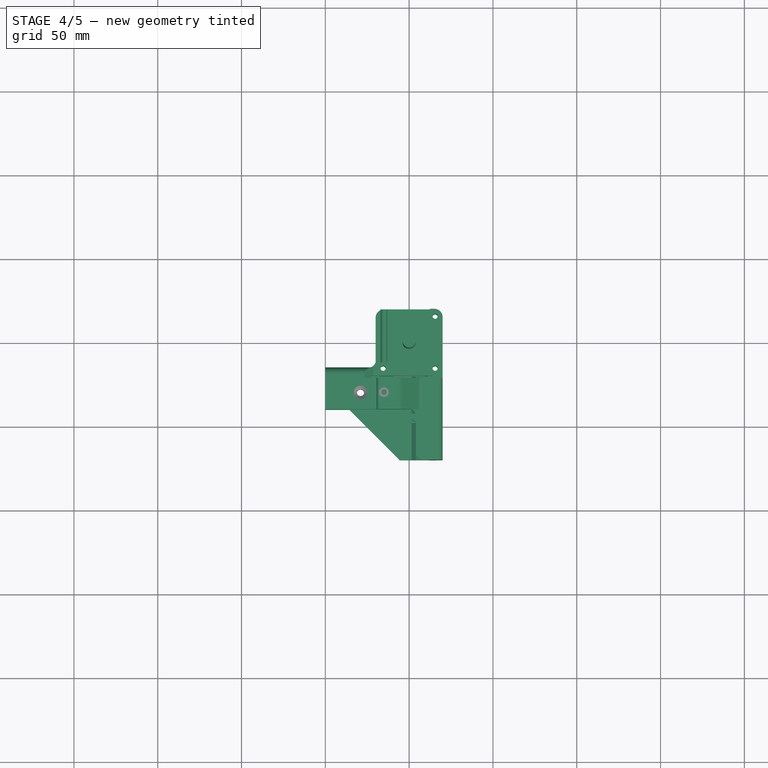
[diagram: stage 4 of 5 — top view after this stage's code; geometry added in this stage tinted green]
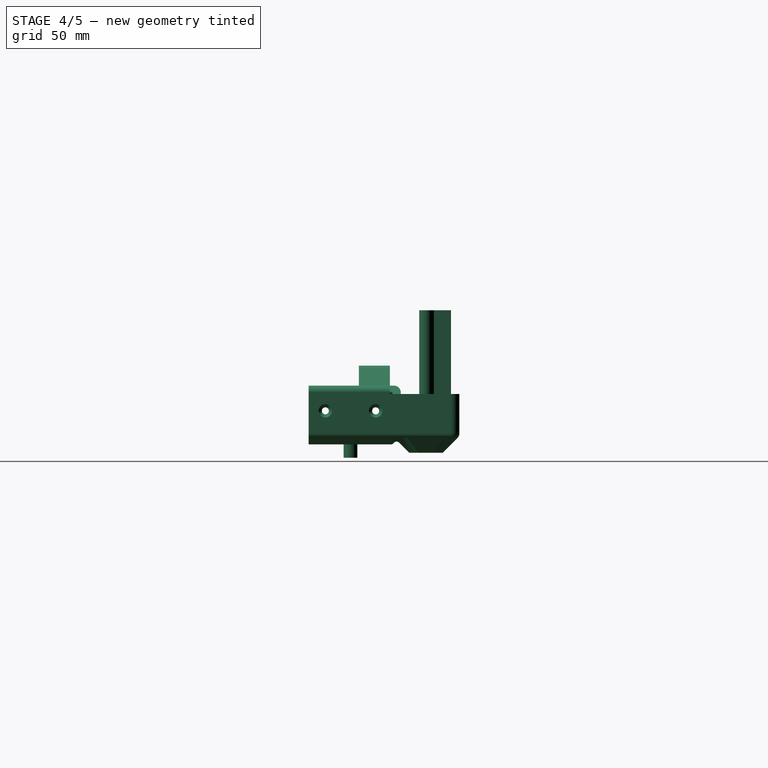
[diagram: stage 4 of 5 — right view after this stage's code; geometry added in this stage tinted green]
FEATURE [PartDesign::Pad] Pad005  label="NEMABoltThread"
  Length = 50
  Length2 = 100
  Sketch = -> Sketch007
  Type = 0
FEATURE [Part::FeaturePython] Clone012  label="Clone of NEMABoltThread"  # Draft clone (typed FeaturePython)
  Objects = -> [Pad005]
  Placement = pos=(15.5,-15.5,-35) rot=(0,0,1;0rad)
  Scale = (1,1,1)
FEATURE [Part::Mirroring] Part__Mirroring011  label="Clone of NEMABoltThread (Mirror #8)"
  Base = (0,0,0)
  Normal = (0,1,0)
  Source = -> Clone012
FEATURE [Part::FeaturePython] Clone013  label="Clone of Clone of NEMABoltThread"  # Draft clone (typed FeaturePython)
  Objects = -> [Clone012]
  Placement = pos=(-15.5,-15.5,-34) rot=(0,0,1;0rad)
  Scale = (1,1,1)
FEATURE [Sketcher::SketchObject] Sketch046  label="SmRodSlot"
  expr: Constraints[6] = 4 + pars.SmRodTol
  sketch-geometry (6):
    g0: ArcOfCircle CenterX=0 CenterY=0 CenterZ=0 NormalX=0 NormalY=0 NormalZ=1 Radius=3.95 StartAngle=2.3562 EndAngle=7.06858
    g1: LineSegment StartX=-2.79307 StartY=2.79307 StartZ=0 EndX=-0.8 EndY=4.78614 EndZ=0
    g2: LineSegment StartX=0.8 StartY=4.78614 StartZ=0 EndX=2.79307 EndY=2.79307 EndZ=0
    g3: LineSegment StartX=-0.8 StartY=4.78614 StartZ=0 EndX=-0.8 EndY=15 EndZ=0
    g4: LineSegment StartX=-0.8 StartY=15 StartZ=0 EndX=0.8 EndY=15 EndZ=0
    g5: LineSegment StartX=0.8 StartY=15 StartZ=0 EndX=0.8 EndY=4.78614 EndZ=0
  constraints (18):
    c: Coincident(g0,g2)
    c: Coincident(g1,g0)
    c: Tangent(g0,g1)
    c: Tangent(g2,g0)
    c: Perpendicular(g1,g2)
    c: Coincident(g0,g-1)
    c: Radius(g0) = 3.95
    c: Coincident(g3,g4)
    c: Coincident(g4,g5)
    c: Vertical(g3)
    c: Vertical(g5)
    c: Horizontal(g4)
    c: Coincident(g3,g1)
    c: DistanceY(g3) = 15
    c: DistanceX(g4,g4) = 1.6
    c: Coincident(g5,g2)
    c: Angle(g3,g1) = 2.35619
    c: Symmetric(g3,g4,g-2)
FEATURE [PartDesign::Pad] Pad020  label="SmRodSlot001"
  Length = 50
  Length2 = 100
  Sketch = -> Sketch046
  Type = 0
FEATURE [Sketcher::SketchObject] Sketch033  label="M3Nut"
  Placement = pos=(0,0,15) rot=(0,0,1;0rad)
  expr: Constraints[19] = 5.5 + pars.NutWidthClearmm
  sketch-geometry (7):
    g0: LineSegment StartX=2.8 StartY=-1.61658 StartZ=0 EndX=2.8 EndY=1.61658 EndZ=0
    g1: LineSegment StartX=2.8 StartY=1.61658 StartZ=0 EndX=-8e-12 EndY=3.23316 EndZ=0
    g2: LineSegment StartX=-8e-12 StartY=3.23316 StartZ=0 EndX=-2.8 EndY=1.61658 EndZ=0
    g3: LineSegment StartX=-2.8 StartY=1.61658 StartZ=0 EndX=-2.8 EndY=-1.61658 EndZ=0
    g4: LineSegment StartX=-2.8 StartY=-1.61658 StartZ=0 EndX=-4e-12 EndY=-3.23316 EndZ=0
    g5: LineSegment StartX=-4e-12 StartY=-3.23316 StartZ=0 EndX=2.8 EndY=-1.61658 EndZ=0
    g6: Circle [constr] CenterX=0 CenterY=0 CenterZ=0 NormalX=0 NormalY=0 NormalZ=1 Radius=3.23316
  constraints (16):
    c: Coincident(g0,g1)
    c: Coincident(g1,g2)
    c: Coincident(g2,g3)
    c: Coincident(g3,g4)
    c: Coincident(g4,g5)
    c: Coincident(g5,g0)
    c: Equal(g0, g1-g5) x5
    c: PointOnObject(g0,g6)
    c: PointOnObject(g1,g6)
    c: PointOnObject(g2,g6)
    c: PointOnObject(g3,g6)
    c: PointOnObject(g4,g6)
    c: PointOnObject(g5,g6)
    c: Vertical(g3)
    c: Coincident(g6,g-1)
    c: DistanceX(g2,g0) = 5.6
FEATURE [PartDesign::Pad] Pad011  label="M3Nut001"
  Length = 3
  Length2 = 100
  Placement = pos=(0,0,15) rot=(0,0,1;0rad)
  Sketch = -> Sketch033
  Type = 0
FEATURE [Part::FeaturePython] Clone024  label="Clone of M3Nut001"  # Draft clone (typed FeaturePython)
  Objects = -> [Pad011]
  Placement = pos=(-15,-30,0) rot=(0,0,1;0rad)
  Scale = (1,1,1)
FEATURE [Part::Cut] Cut010  label="StringWindowCut"
  Base = -> Chamfer003006
  Tool = -> Chamfer
FEATURE [Part::Chamfer] Chamfer003005  label="StringWindowChamfer"
  Base = -> Cut010
  Edges = 8 edges r=1: [Edge104,Edge105,Edge106,Edge107,Edge108,Edge109,Edge110,Edge111]
FEATURE [Part::Cut] Cut018002004004004  label="YRodAdjustBolt"
  Base = -> Chamfer003005
  Tool = -> Clone026
FEATURE [Part::Cut] Cut018002004004005  label="YRodAdjustNut"
  Base = -> Cut018002004004004
  Tool = -> Clone024
FEATURE [Part::FeaturePython] Clone029  label="Clone of M4PrintHead003"  # Draft clone (typed FeaturePython)
  Objects = -> [Pad024]
  Placement = pos=(4,-45,-28) rot=(-0.707107,0.707107,0;3.14159rad)
  Scale = (1,1,1)
FEATURE [Part::FeaturePython] Clone030  label="Clone of DIN7991M4Bolt001"  # Draft clone (typed FeaturePython)
  Objects = -> [Revolution001]
  Placement = pos=(20,-30,-10) rot=(0,0,-1;1.5708rad)
  Scale = (1,1,1)
FEATURE [Part::FeaturePython] Array001  label="SideBolts"  # Draft array (typed FeaturePython)
  Angle = 360
  ArrayType = 0
  Axis = (0,0,1)
  Base = -> Clone030
  Center = (0,0,0)
  Fuse = false
  IntervalAxis = (0,0,0)
  IntervalX = (1,0,0)
  IntervalY = (0,-30,0)
  IntervalZ = (0,0,0)
  NumberPolar = 1
  NumberX = 1
  NumberY = 2
  NumberZ = 1
FEATURE [Part::Mirroring] Part__Mirroring016  label="Clone of Clone of NEMABoltThread (Mirror #12)"
  Base = (0,0,0)
  Normal = (0,1,0)
  Source = -> Clone013
FEATURE [Part::Cylinder] Cylinder
  Angle = 360
  Height = 32
  Placement = pos=(-15,20,-21) rot=(1,0,0;1.5708rad)
  Radius = 2
FEATURE [Part::FeaturePython] Clone  label="Clone of DIN7991M4Bolt002"  # Draft clone (typed FeaturePython)
  Objects = -> [Revolution001]
  Placement = pos=(-40,-15,-10) rot=(0,0,1;0rad)
  Scale = (1,1,1)
FEATURE [Part::Cut] Cut011
  Base = -> Cut018002004004005
  Tool = -> Clone033
FEATURE [Part::Cut] Cut018002004004009  label="UpperBoltCut"
  Base = -> Cut011
  Tool = -> Clone034
FEATURE [Part::Cut] Cut012
  Base = -> Cut018002004004009
  Tool = -> Clone
FEATURE [Part::Cut] Cut013
  Base = -> Cut012
  Tool = -> Array001
FEATURE [Part::Cut] Cut014
  Base = -> Cut013
  Tool = -> Clone013
FEATURE [Part::Cut] Cut015
  Base = -> Cut014
  Tool = -> Part__Mirroring011
FEATURE [Part::Cut] Cut016
  Base = -> Cut015
  Tool = -> Clone012
FEATURE [Part::Cut] Cut018002004004007  label="Cut018"
  Base = -> Cut016
  Tool = -> Part__Mirroring016
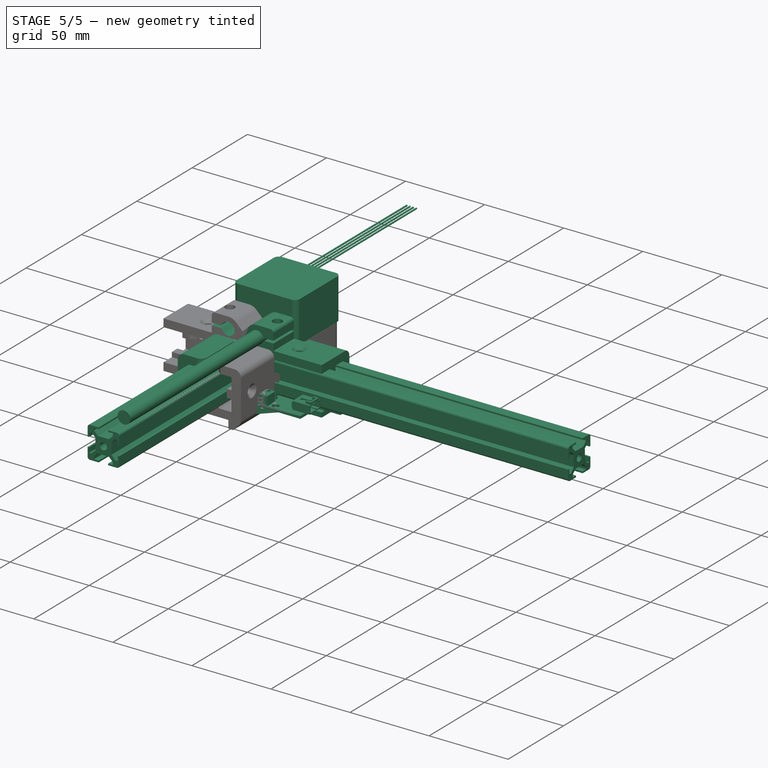
[diagram: stage 5 of 5 — iso view after this stage's code; geometry added in this stage tinted green]
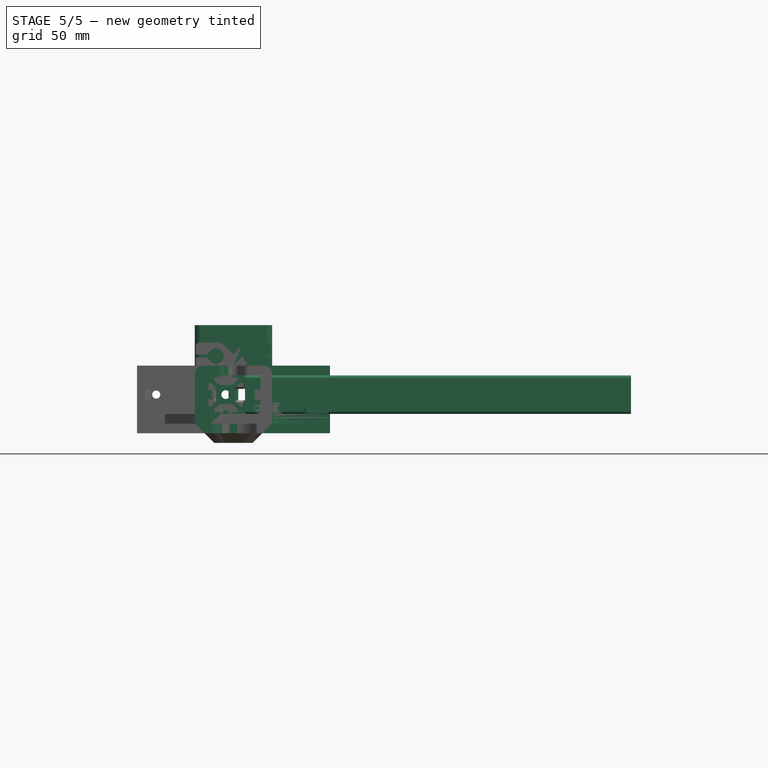
[diagram: stage 5 of 5 — front view after this stage's code; geometry added in this stage tinted green]
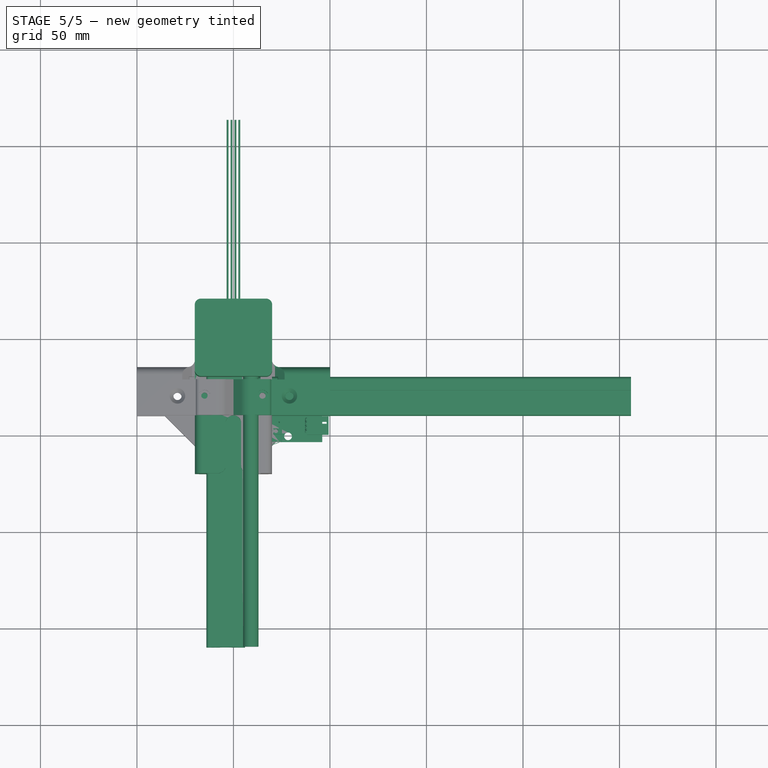
[diagram: stage 5 of 5 — top view after this stage's code; geometry added in this stage tinted green]
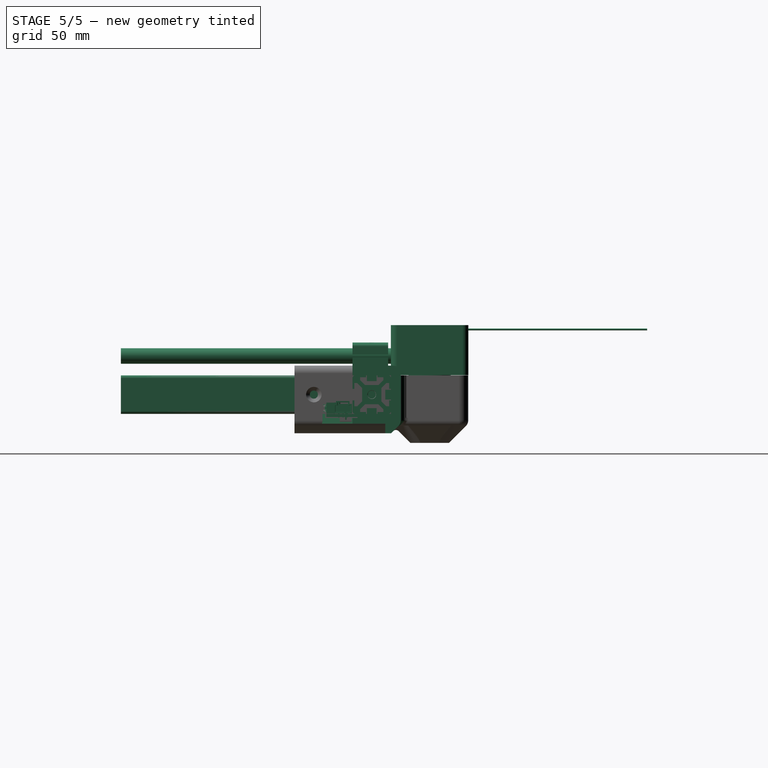
[diagram: stage 5 of 5 — right view after this stage's code; geometry added in this stage tinted green]
FEATURE [Part::Mirroring] Part__Mirroring007  label="T slot extrusion 20x20x200.001 (Mirror #8)"
  Base = (0,0,0)
  Normal = (0,1,0)
  Placement = pos=(-106,-90,-20) rot=(0,0,1;0rad)
FEATURE [Part::Mirroring] Part__Mirroring001  label="YBar (Mirror #2)"
  Base = (0,0,0)
  Normal = (1,0,0)
  Placement = pos=(-106,-90,-20) rot=(0,0,1;0rad)
FEATURE [Part::Mirroring] Part__Mirroring003  label="4018X SNGL (Mirror #4)"
  Base = (0,0,0)
  Normal = (1,0,0)
  Placement = pos=(-106,-90,-20) rot=(0,0,1;0rad)
FEATURE [Part::Mirroring] Part__Mirroring  label="T slot extrusion 20x20x140.001 (Mirror #1)"
  Base = (0,0,0)
  Normal = (1,0,0)
  Placement = pos=(-106,-90,-20) rot=(0,0,1;0rad)
FEATURE [Part::Compound] Compound
  Links = -> [Part__Mirroring,Part__Mirroring003,Part__Mirroring001,Part__Mirroring007]
FEATURE [Part::Mirroring] Part__Mirroring012  label="Compound (Mirror #9)"
  Base = (2.38419e-07,-23.6572,2.93821)
  Normal = (1,0,-1.19209e-07)
  Source = -> Compound
FEATURE [Part::Box] Box005  label="EndstopPlate"
  Height = 2
  Length = 66
  Placement = pos=(-76,7,-12) rot=(0,0,1;0rad)
  Width = 16.5
FEATURE [Sketcher::SketchObject] Sketch042  label="SwitchPins"
  Placement = pos=(-76,7,-12) rot=(1,0,0;3.14159rad)
  Support = -> Box005 [Face5]
  sketch-geometry (4):
    g0: LineSegment StartX=32 StartY=-3 StartZ=0 EndX=62 EndY=-3 EndZ=0
    g1: LineSegment StartX=62 StartY=-3 StartZ=0 EndX=62 EndY=-9 EndZ=0
    g2: LineSegment StartX=62 StartY=-9 StartZ=0 EndX=32 EndY=-9 EndZ=0
    g3: LineSegment StartX=32 StartY=-9 StartZ=0 EndX=32 EndY=-3 EndZ=0
  constraints (12):
    c: Coincident(g0,g1)
    c: Coincident(g1,g2)
    c: Coincident(g2,g3)
    c: Coincident(g3,g0)
    c: Horizontal(g0)
    c: Horizontal(g2)
    c: Vertical(g1)
    c: Vertical(g3)
    c: DistanceX(g0) = 30
    c: DistanceY(g3) = 6
    c: DistanceY(g-1,g0) = -3
    c: DistanceX(g0) = 62
FEATURE [PartDesign::Pad] Pad014  label="SwitchPins001"
  Length = 2
  Length2 = 100
  Placement = pos=(-76,7,-12) rot=(0,0,1;0rad)
  Sketch = -> Sketch042
  Type = 0
FEATURE [Part::Offset] Offset001  label="EndstopTolerance001"
  Fill = false
  Intersection = false
  Join = 0
  Mode = 0
  Placement = pos=(-4,-30.5,-10) rot=(0,0,1;3.14159rad)
  SelfIntersection = false
  Source = -> Pad014
  Value = 0.1
FEATURE [Part::Compound] Compound004  label="yEndstop"
  Placement = pos=(46,-37,-20) rot=(0.57735,0.57735,-0.57735;2.0944rad)
FEATURE [App::DocumentObjectGroup] Group  label="Reference"
  Group = -> [Part__Mirroring007,Part__Mirroring001,Part__Mirroring003,Part__Mirroring,Sketch,Compound,Part__Mirroring012,Compound004]
FEATURE [Sketcher::SketchObject] Sketch043  label="ShaftWindow"
  sketch-geometry (4):
    g0: ArcOfCircle CenterX=0 CenterY=0 CenterZ=0 NormalX=0 NormalY=0 NormalZ=1 Radius=3.5 StartAngle=3.927 EndAngle=8.63937
    g1: LineSegment StartX=-2.47486 StartY=-2.47488 StartZ=0 EndX=-3.5 EndY=-1.44975 EndZ=0
    g2: LineSegment StartX=-3.5 StartY=-1.44975 StartZ=0 EndX=-3.5 EndY=1.44975 EndZ=0
    g3: LineSegment StartX=-3.5 StartY=1.44975 StartZ=0 EndX=-2.47486 EndY=2.47489 EndZ=0
  constraints (12):
    c: Coincident(g0,g-1)
    c: Radius(g0) = 3.5
    c: Coincident(g1,g2)
    c: Coincident(g2,g3)
    c: Coincident(g3,g0)
    c: Coincident(g1,g0)
    c: Vertical(g2)
    c: Perpendicular(g1,g3)
    c: Tangent(g3,g0)
    c: Tangent(g2,g0)
    c: Tangent(g0,g1)
    c: Angle(g2,g3) = 2.35619
FEATURE [PartDesign::Pad] Pad015  label="ShaftWindow001"
  Length = 20
  Length2 = 100
  Sketch = -> Sketch043
  Type = 0
FEATURE [App::DocumentObjectGroup] Group004  label="Hole_src"
  Group = -> [Pad015]
FEATURE [Part::FeaturePython] Clone015  label="Clone of ShaftWindow001"  # Draft clone (typed FeaturePython)
  Objects = -> [Pad015]
  Placement = pos=(0,0,-37) rot=(0,0,1;0rad)
  Scale = (1,1,1)
FEATURE [Part::FeaturePython] Clone019  label="Clone of SmRodSlot001"  # Draft clone (typed FeaturePython)
  Objects = -> [Pad020]
  Placement = pos=(-9,-48,10) rot=(0.57735,-0.57735,-0.57735;4.18879rad)
  Scale = (1,1,1)
FEATURE [Part::FeaturePython] Clone031  label="Clone of M3PrintHead002"  # Draft clone (typed FeaturePython)
  Objects = -> [Pad021]
  Placement = pos=(9.5,-50.5,-26) rot=(0.707107,0.707107,0;3.14159rad)
  Scale = (1,1,1)
FEATURE [Part::Cut] Cut017
  Base = -> Cut018002004004007
  Tool = -> Clone019
FEATURE [Part::Cut] Cut018  label="BoltCuts"
  Base = -> Cut017
  Tool = -> Clone029
FEATURE [Part::Cut] Cut018002004004  label="ShaftWindowCut"
  Base = -> Cut018
  Tool = -> Clone015
FEATURE [Part::Cut] Cut018002004004008  label="PulleyLidCut"
  Base = -> Cut018002004004
  Tool = -> Cylinder
FEATURE [Part::FeaturePython] refine001  label="refine_PulleyLidCut"  # WARN: FeaturePython — macro-defined, semantics opaque (R4)
  Base = -> Cut018002004004008
FEATURE [Part::Mirroring] Part__Mirroring014  label="PulleyLidCut (Mirror #10)"
  Base = (0,0,0)
  Normal = (1,0,0)
  Source = -> refine001
FEATURE [Part::Cut] Cut018002004004002  label="EndstopCut"
  Base = -> Part__Mirroring014
  Tool = -> Offset001
FEATURE [Part::Cut] Cut018002004004003  label="EndstopBoltCut"
  Base = -> Cut018002004004002
  Tool = -> Clone031
FEATURE [App::DocumentObjectGroup] Group003  label="src"
  Group = -> [Cut,Cut003,Sketch041,Cut018,Pad016,Fillet007,Draft,Pad018,Cut018002004004003,Cut018002004004005,Cut018002004004008]
FEATURE [Part::FeaturePython] Clone018  label="LBackCorner"  # Draft clone (typed FeaturePython)
  Objects = -> [Cut018002004004003]
  Scale = (1,1,1)
FEATURE [Part::FeaturePython] Clone032  label="RBackCorner"  # Draft clone (typed FeaturePython)
  Objects = -> [refine001]
  Scale = (1,1,1)
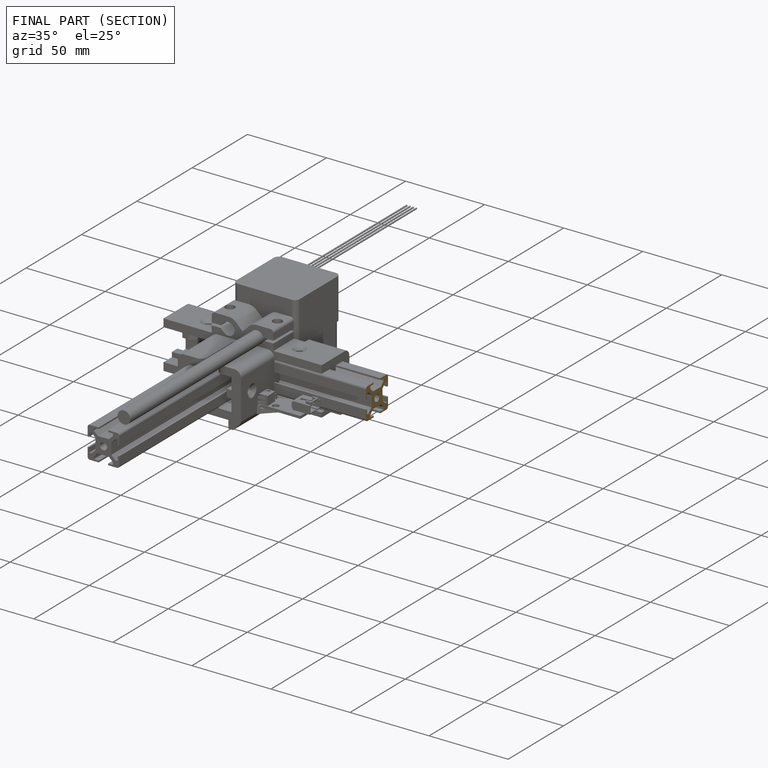
[diagram: finished part — half-section view (interior)]
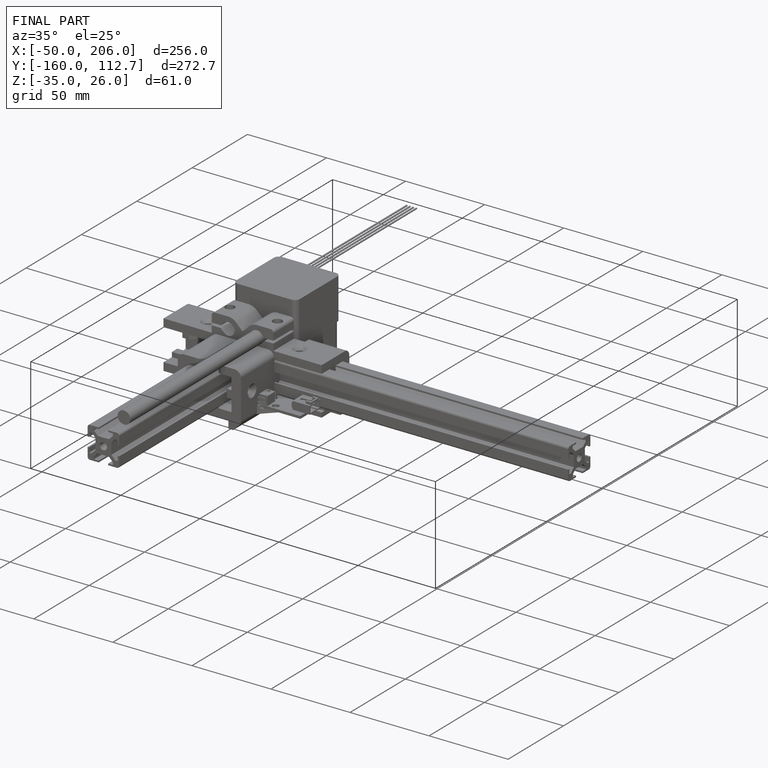
[diagram: finished part — iso view with bounding-box wireframe]
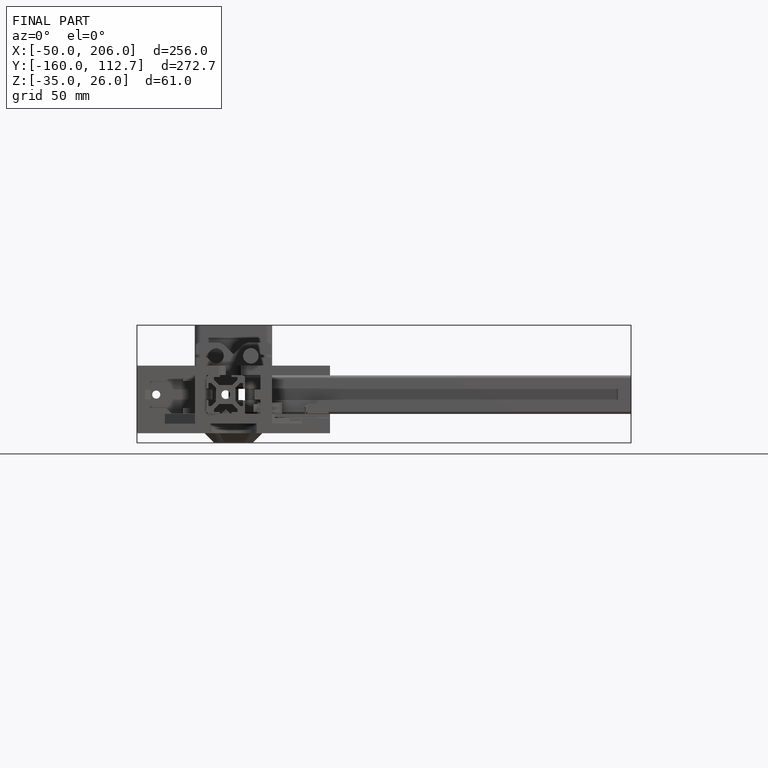
[diagram: finished part — front view with bounding-box wireframe]
